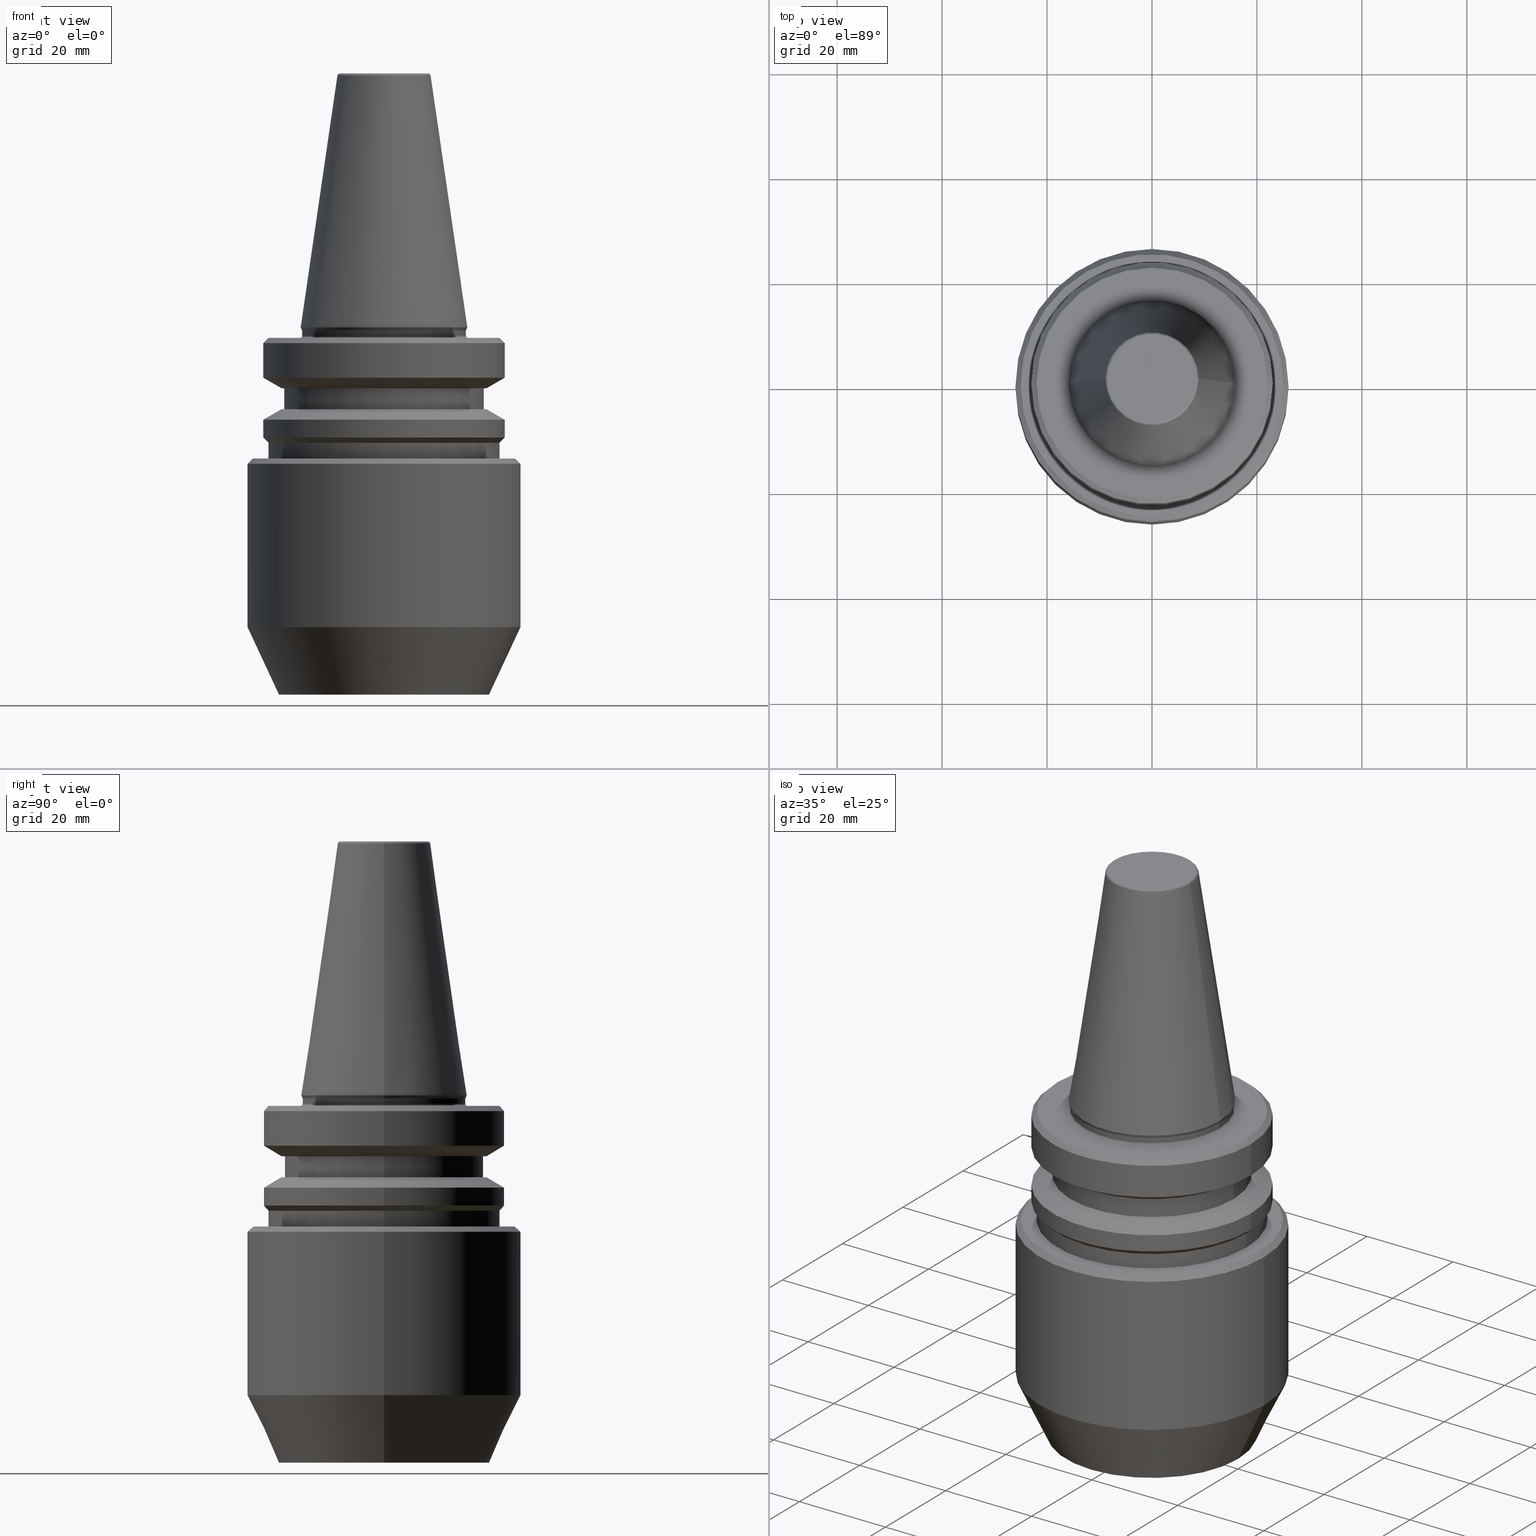
[diagram: canonical four-view strip — front | top / right | iso, engineering-drawing reading convention]
A machine part, canonical four-view strip (front | top / right | iso — engineering-drawing reading convention). The complete STEP part file that produces these views, byte-faithful:
ISO-10303-21;
HEADER;
FILE_DESCRIPTION (( 'STEP AP203' ),
    '1' );
FILE_NAME ('BT30 WE20 070 AD-6.3G15000 SL.STEP',
    '2019-05-22T05:08:59',
    ( '' ),
    ( '' ),
    'SwSTEP 2.0',
    'SolidWorks 2014',
    '' );
FILE_SCHEMA (( 'CONFIG_CONTROL_DESIGN' ));
ENDSEC;

DATA;
#1 = ORIENTED_EDGE ( 'NONE', *, *, #109, .F. ) ;
#2 = ORIENTED_EDGE ( 'NONE', *, *, #43, .T. ) ;
#3 = EDGE_LOOP ( 'NONE', ( #600, #959, #840, #39 ) ) ;
#4 = CARTESIAN_POINT ( 'NONE',  ( 0.0000000000000000000, 0.0000000000000000000, -1.599999999999823800 ) ) ;
#5 = DIRECTION ( 'NONE',  ( -0.0000000000000000000, -0.0000000000000000000, 1.000000000000000000 ) ) ;
#6 = CARTESIAN_POINT ( 'NONE',  ( 19.53610161513918800, 0.0000000000000000000, -11.59999999999938900 ) ) ;
#7 = AXIS2_PLACEMENT_3D ( 'NONE', #726, #348, #502 ) ;
#8 = ADVANCED_FACE ( 'NONE', ( #835 ), #177, .T. ) ;
#9 = DIRECTION ( 'NONE',  ( -0.0000000000000000000, -0.0000000000000000000, 1.000000000000000000 ) ) ;
#10 = AXIS2_PLACEMENT_3D ( 'NONE', #489, #714, #332 ) ;
#11 = CARTESIAN_POINT ( 'NONE',  ( -21.99999999999990800, 0.0000000000000000000, -2.000000000000001800 ) ) ;
#12 = CARTESIAN_POINT ( 'NONE',  ( 0.0000000000000000000, 0.0000000000000000000, -17.59988266494561100 ) ) ;
#13 = CARTESIAN_POINT ( 'NONE',  ( 0.0000000000000000000, 0.0000000000000000000, -11.59999999999938900 ) ) ;
#14 = VECTOR ( 'NONE', #206, 1000.000000000000000 ) ;
#15 = CARTESIAN_POINT ( 'NONE',  ( 25.99999999999791500, 0.0000000000000000000, -25.99999999999991100 ) ) ;
#16 = AXIS2_PLACEMENT_3D ( 'NONE', #288, #609, #852 ) ;
#17 = ORIENTED_EDGE ( 'NONE', *, *, #467, .T. ) ;
#18 = LINE ( 'NONE', #500, #252 ) ;
#19 = CARTESIAN_POINT ( 'NONE',  ( 0.0000000000000000000, 19.99999999999835200, -69.99999999999984400 ) ) ;
#20 = ADVANCED_FACE ( 'NONE', ( #1029 ), #202, .T. ) ;
#21 = AXIS2_PLACEMENT_3D ( 'NONE', #179, #653, #811 ) ;
#22 = ORIENTED_EDGE ( 'NONE', *, *, #83, .F. ) ;
#23 = FACE_OUTER_BOUND ( 'NONE', #623, .T. ) ;
#24 = EDGE_CURVE ( 'NONE', #534, #196, #812, .T. ) ;
#25 = EDGE_LOOP ( 'NONE', ( #379, #686, #594, #651 ) ) ;
#26 = ORIENTED_EDGE ( 'NONE', *, *, #413, .F. ) ;
#27 = ORIENTED_EDGE ( 'NONE', *, *, #753, .F. ) ;
#28 = EDGE_LOOP ( 'NONE', ( #456, #777, #400, #862 ) ) ;
#29 = AXIS2_PLACEMENT_3D ( 'NONE', #210, #972, #55 ) ;
#30 = EDGE_CURVE ( 'NONE', #403, #578, #596, .T. ) ;
#31 = CARTESIAN_POINT ( 'NONE',  ( 19.99999999999835200, 0.0000000000000000000, -69.99999999999985800 ) ) ;
#32 = CARTESIAN_POINT ( 'NONE',  ( -19.00000000000023800, 2.326828918380000200E-015, 95.66143460902885900 ) ) ;
#33 = DIRECTION ( 'NONE',  ( 1.000000000000000000, 0.0000000000000000000, 0.0000000000000000000 ) ) ;
#34 = AXIS2_PLACEMENT_3D ( 'NONE', #741, #466, #245 ) ;
#35 = DIRECTION ( 'NONE',  ( -0.0000000000000000000, -0.0000000000000000000, 1.000000000000000000 ) ) ;
#36 = VECTOR ( 'NONE', #875, 1000.000000000000000 ) ;
#37 = ORIENTED_EDGE ( 'NONE', *, *, #82, .T. ) ;
#38 = CIRCLE ( 'NONE', #143, 19.53610161513769200 ) ;
#39 = ORIENTED_EDGE ( 'NONE', *, *, #49, .F. ) ;
#40 = CARTESIAN_POINT ( 'NONE',  ( 0.0000000000000000000, 0.0000000000000000000, -25.00000000000002100 ) ) ;
#41 = CARTESIAN_POINT ( 'NONE',  ( 0.0000000000000000000, 19.53610161513918800, -11.59999999999938900 ) ) ;
#42 = VERTEX_POINT ( 'NONE', #846 ) ;
#43 = EDGE_CURVE ( 'NONE', #589, #42, #788, .T. ) ;
#44 = CARTESIAN_POINT ( 'NONE',  ( 0.0000000000000000000, 0.0000000000000000000, -69.99999999999985800 ) ) ;
#45 = AXIS2_PLACEMENT_3D ( 'NONE', #618, #445, #995 ) ;
#46 = CARTESIAN_POINT ( 'NONE',  ( -21.99999999999990800, 2.694222958124165800E-015, -25.00000000000002100 ) ) ;
#47 = FACE_OUTER_BOUND ( 'NONE', #655, .T. ) ;
#48 = EDGE_LOOP ( 'NONE', ( #453, #295, #860, #72 ) ) ;
#49 = EDGE_CURVE ( 'NONE', #886, #1031, #430, .T. ) ;
#50 = CIRCLE ( 'NONE', #867, 25.99999999999791500 ) ;
#51 = AXIS2_PLACEMENT_3D ( 'NONE', #558, #99, #155 ) ;
#52 = DIRECTION ( 'NONE',  ( -0.0000000000000000000, -0.0000000000000000000, 1.000000000000000000 ) ) ;
#53 = DIRECTION ( 'NONE',  ( 1.000000000000000000, 0.0000000000000000000, 0.0000000000000000000 ) ) ;
#54 = DIRECTION ( 'NONE',  ( -0.8660254037844393700, 1.060575238724907800E-016, 0.4999999999999985000 ) ) ;
#55 = DIRECTION ( 'NONE',  ( 1.000000000000000000, 0.0000000000000000000, 0.0000000000000000000 ) ) ;
#56 = DIRECTION ( 'NONE',  ( -0.0000000000000000000, -0.0000000000000000000, 1.000000000000000000 ) ) ;
#57 = DIRECTION ( 'NONE',  ( -0.0000000000000000000, -0.0000000000000000000, 1.000000000000000000 ) ) ;
#58 = APPROVAL ( #317, 'UNSPECIFIED' ) ;
#59 = DATE_AND_TIME ( #286, #506 ) ;
#60 = CIRCLE ( 'NONE', #111, 15.87499999999930700 ) ;
#61 = AXIS2_PLACEMENT_3D ( 'NONE', #1021, #547, #693 ) ;
#62 = DIRECTION ( 'NONE',  ( -0.0000000000000000000, -0.0000000000000000000, 1.000000000000000000 ) ) ;
#63 = FACE_OUTER_BOUND ( 'NONE', #936, .T. ) ;
#64 = ORIENTED_EDGE ( 'NONE', *, *, #804, .F. ) ;
#65 = ORIENTED_EDGE ( 'NONE', *, *, #394, .F. ) ;
#66 = DIRECTION ( 'NONE',  ( -1.000000000000000000, 0.0000000000000000000, -0.0000000000000000000 ) ) ;
#67 = CARTESIAN_POINT ( 'NONE',  ( 0.0000000000000000000, 0.0000000000000000000, -21.00000000000001800 ) ) ;
#68 = AXIS2_PLACEMENT_3D ( 'NONE', #228, #392, #437 ) ;
#69 = PLANE ( 'NONE',  #187 ) ;
#70 = LINE ( 'NONE', #497, #519 ) ;
#71 = VERTEX_POINT ( 'NONE', #783 ) ;
#72 = ORIENTED_EDGE ( 'NONE', *, *, #753, .T. ) ;
#73 = CONICAL_SURFACE ( 'NONE', #16, 15.60000000000016800, 0.4363323129978970400 ) ;
#74 = PLANE ( 'NONE',  #335 ) ;
#75 = DIRECTION ( 'NONE',  ( -0.0000000000000000000, -0.0000000000000000000, 1.000000000000000000 ) ) ;
#76 = AXIS2_PLACEMENT_3D ( 'NONE', #84, #816, #435 ) ;
#77 = DIRECTION ( 'NONE',  ( 0.0000000000000000000, 0.0000000000000000000, -1.000000000000000000 ) ) ;
#78 = EDGE_LOOP ( 'NONE', ( #745, #659, #2, #759 ) ) ;
#79 = EDGE_CURVE ( 'NONE', #534, #395, #1002, .T. ) ;
#80 = CARTESIAN_POINT ( 'NONE',  ( 25.99999999999791500, 0.0000000000000000000, 95.66143460902885900 ) ) ;
#81 = DIRECTION ( 'NONE',  ( -1.000000000000000000, 0.0000000000000000000, 0.0000000000000000000 ) ) ;
#82 = EDGE_CURVE ( 'NONE', #171, #886, #577, .T. ) ;
#83 = EDGE_CURVE ( 'NONE', #395, #534, #149, .T. ) ;
#84 = CARTESIAN_POINT ( 'NONE',  ( 0.0000000000000000000, 0.0000000000000000000, 0.0000000000000000000 ) ) ;
#85 = ADVANCED_FACE ( 'NONE', ( #377 ), #530, .T. ) ;
#86 = APPROVAL_DATE_TIME ( #322, #787 ) ;
#87 = CIRCLE ( 'NONE', #119, 8.384228427309182100 ) ;
#88 = DIRECTION ( 'NONE',  ( 1.000000000000000000, 0.0000000000000000000, 0.0000000000000000000 ) ) ;
#89 = DIRECTION ( 'NONE',  ( -0.0000000000000000000, -0.0000000000000000000, 1.000000000000000000 ) ) ;
#90 = CONICAL_SURFACE ( 'NONE', #21, 21.99999999999990800, 0.7853981633974482800 ) ;
#91 = ADVANCED_FACE ( 'NONE', ( #555 ), #90, .T. ) ;
#92 = CIRCLE ( 'NONE', #51, 22.99999999999979700 ) ;
#93 = ORIENTED_EDGE ( 'NONE', *, *, #406, .T. ) ;
#94 = AXIS2_PLACEMENT_3D ( 'NONE', #825, #552, #298 ) ;
#95 = ORIENTED_EDGE ( 'NONE', *, *, #804, .T. ) ;
#96 = DIRECTION ( 'NONE',  ( 1.000000000000000000, 0.0000000000000000000, 0.0000000000000000000 ) ) ;
#97 = DIRECTION ( 'NONE',  ( -0.0000000000000000000, -0.0000000000000000000, 1.000000000000000000 ) ) ;
#98 = DIRECTION ( 'NONE',  ( -0.0000000000000000000, -0.0000000000000000000, 1.000000000000000000 ) ) ;
#99 = DIRECTION ( 'NONE',  ( -0.0000000000000000000, -0.0000000000000000000, 1.000000000000000000 ) ) ;
#100 = EDGE_CURVE ( 'NONE', #557, #175, #354, .T. ) ;
#101 = FACE_BOUND ( 'NONE', #718, .T. ) ;
#102 = COORDINATED_UNIVERSAL_TIME_OFFSET ( 5, 30, .AHEAD. ) ;
#103 =( LENGTH_UNIT ( ) NAMED_UNIT ( * ) SI_UNIT ( .MILLI., .METRE. ) );
#104 = EDGE_CURVE ( 'NONE', #395, #326, #948, .T. ) ;
#105 = CARTESIAN_POINT ( 'NONE',  ( 0.0000000000000000000, 0.0000000000000000000, 47.97215411344135600 ) ) ;
#106 = ORIENTED_EDGE ( 'NONE', *, *, #888, .T. ) ;
#107 = ORIENTED_EDGE ( 'NONE', *, *, #901, .F. ) ;
#108 = CIRCLE ( 'NONE', #61, 22.99999999999979700 ) ;
#109 = EDGE_CURVE ( 'NONE', #472, #876, #324, .T. ) ;
#110 = VERTEX_POINT ( 'NONE', #780 ) ;
#111 = AXIS2_PLACEMENT_3D ( 'NONE', #715, #461, #243 ) ;
#112 = APPROVAL_PERSON_ORGANIZATION ( #349, #787, #628 ) ;
#113 = FACE_OUTER_BOUND ( 'NONE', #336, .T. ) ;
#114 = PERSON_AND_ORGANIZATION_ROLE ( 'classification_officer' ) ;
#115 = FACE_BOUND ( 'NONE', #548, .T. ) ;
#116 = EDGE_LOOP ( 'NONE', ( #565, #273, #142, #815 ) ) ;
#117 = EDGE_LOOP ( 'NONE', ( #950, #620, #151, #408 ) ) ;
#118 = APPLICATION_CONTEXT ( 'configuration controlled 3d designs of mechanical parts and assemblies' ) ;
#119 = AXIS2_PLACEMENT_3D ( 'NONE', #641, #165, #251 ) ;
#120 = CARTESIAN_POINT ( 'NONE',  ( -15.60000000000022500, 1.910449006669898500E-015, 95.66143460902885900 ) ) ;
#121 = DIRECTION ( 'NONE',  ( 1.000000000000000000, 0.0000000000000000000, 0.0000000000000000000 ) ) ;
#122 = AXIS2_PLACEMENT_3D ( 'NONE', #261, #685, #542 ) ;
#123 = CARTESIAN_POINT ( 'NONE',  ( 22.99999999999979700, 0.0000000000000000000, -21.00000000000001800 ) ) ;
#124 = AXIS2_PLACEMENT_3D ( 'NONE', #316, #625, #405 ) ;
#125 = CARTESIAN_POINT ( 'NONE',  ( -15.60000000000016800, 1.910449006669895000E-015, -0.5897394031393332600 ) ) ;
#126 = DIRECTION ( 'NONE',  ( 1.000000000000000000, 0.0000000000000000000, 0.0000000000000000000 ) ) ;
#127 = VECTOR ( 'NONE', #851, 1000.000000000000100 ) ;
#128 = LOCAL_TIME ( 10, 38, 59.00000000000000000, #362 ) ;
#129 = DIRECTION ( 'NONE',  ( -0.7071067811865474600, 0.0000000000000000000, -0.7071067811865475700 ) ) ;
#130 = EDGE_CURVE ( 'NONE', #342, #796, #757, .T. ) ;
#131 = DIRECTION ( 'NONE',  ( -0.7071067811865474600, 8.659560562354931600E-017, 0.7071067811865475700 ) ) ;
#132 = VERTEX_POINT ( 'NONE', #843 ) ;
#133 = FACE_OUTER_BOUND ( 'NONE', #444, .T. ) ;
#134 = DIRECTION ( 'NONE',  ( -1.000000000000000000, 1.224646799147352200E-016, 0.0000000000000000000 ) ) ;
#135 = ORIENTED_EDGE ( 'NONE', *, *, #602, .T. ) ;
#136 = ORIENTED_EDGE ( 'NONE', *, *, #593, .F. ) ;
#137 = AXIS2_PLACEMENT_3D ( 'NONE', #393, #772, #842 ) ;
#138 = ORIENTED_EDGE ( 'NONE', *, *, #922, .T. ) ;
#139 = AXIS2_PLACEMENT_3D ( 'NONE', #991, #476, #1019 ) ;
#140 = ADVANCED_FACE ( 'NONE', ( #510, #115 ), #74, .F. ) ;
#141 = CARTESIAN_POINT ( 'NONE',  ( -19.99999999999835200, 2.449293598294504600E-015, -69.99999999999985800 ) ) ;
#142 = ORIENTED_EDGE ( 'NONE', *, *, #590, .F. ) ;
#143 = AXIS2_PLACEMENT_3D ( 'NONE', #1045, #287, #248 ) ;
#144 = CARTESIAN_POINT ( 'NONE',  ( 15.60000000000016800, 0.0000000000000000000, -0.5897394031393332600 ) ) ;
#145 = CIRCLE ( 'NONE', #559, 25.99999999999791500 ) ;
#146 = DIRECTION ( 'NONE',  ( -0.0000000000000000000, -0.0000000000000000000, 1.000000000000000000 ) ) ;
#147 = EDGE_CURVE ( 'NONE', #326, #196, #325, .T. ) ;
#148 = DIRECTION ( 'NONE',  ( -0.0000000000000000000, -0.0000000000000000000, 1.000000000000000000 ) ) ;
#149 = CIRCLE ( 'NONE', #195, 15.60000000000028000 ) ;
#150 = DIRECTION ( 'NONE',  ( 1.000000000000000000, 0.0000000000000000000, 0.0000000000000000000 ) ) ;
#151 = ORIENTED_EDGE ( 'NONE', *, *, #375, .T. ) ;
#152 = PERSON ( 'UNSPECIFIED', 'UNSPECIFIED', 'UNSPECIFIED', ('UNSPECIFIED'), ('UNSPECIFIED'), ('UNSPECIFIED') ) ;
#153 = CARTESIAN_POINT ( 'NONE',  ( 0.0000000000000000000, 0.0000000000000000000, 95.66143460902885900 ) ) ;
#154 = DIRECTION ( 'NONE',  ( -0.7071067811865474600, 0.0000000000000000000, -0.7071067811865475700 ) ) ;
#155 = DIRECTION ( 'NONE',  ( 1.000000000000000000, 0.0000000000000000000, 0.0000000000000000000 ) ) ;
#156 = LINE ( 'NONE', #31, #127 ) ;
#157 = APPROVAL_DATE_TIME ( #385, #58 ) ;
#158 = EDGE_LOOP ( 'NONE', ( #470, #968, #432, #64 ) ) ;
#159 = VECTOR ( 'NONE', #131, 1000.000000000000000 ) ;
#160 = AXIS2_PLACEMENT_3D ( 'NONE', #1006, #613, #397 ) ;
#161 = CARTESIAN_POINT ( 'NONE',  ( 0.0000000000000000000, 0.0000000000000000000, -17.59988266494561100 ) ) ;
#162 = AXIS2_PLACEMENT_3D ( 'NONE', #931, #849, #462 ) ;
#163 = CARTESIAN_POINT ( 'NONE',  ( 0.0000000000000000000, 21.99999999999990800, -25.00000000000002100 ) ) ;
#164 = CIRCLE ( 'NONE', #320, 16.00000000000034800 ) ;
#165 = DIRECTION ( 'NONE',  ( -0.0000000000000000000, -0.0000000000000000000, 1.000000000000000000 ) ) ;
#166 = VERTEX_POINT ( 'NONE', #1025 ) ;
#167 = DIRECTION ( 'NONE',  ( -1.000000000000000000, 0.0000000000000000000, 0.0000000000000000000 ) ) ;
#168 = EDGE_CURVE ( 'NONE', #230, #472, #92, .T. ) ;
#169 = EDGE_CURVE ( 'NONE', #173, #904, #531, .T. ) ;
#170 = CARTESIAN_POINT ( 'NONE',  ( -19.00000000000023800, 2.326828918380000200E-015, -11.59999999999938900 ) ) ;
#171 = VERTEX_POINT ( 'NONE', #603 ) ;
#172 = CARTESIAN_POINT ( 'NONE',  ( 0.0000000000000000000, 0.0000000000000000000, 95.66143460902885900 ) ) ;
#173 = VERTEX_POINT ( 'NONE', #11 ) ;
#174 = CARTESIAN_POINT ( 'NONE',  ( 0.0000000000000000000, 0.0000000000000000000, -0.5897394031393332600 ) ) ;
#175 = VERTEX_POINT ( 'NONE', #708 ) ;
#176 = FACE_OUTER_BOUND ( 'NONE', #423, .T. ) ;
#177 = CONICAL_SURFACE ( 'NONE', #792, 19.53610161513918800, 1.047197551196599400 ) ;
#178 = EDGE_CURVE ( 'NONE', #746, #42, #903, .T. ) ;
#179 = CARTESIAN_POINT ( 'NONE',  ( 0.0000000000000000000, 0.0000000000000000000, -21.99999999999990800 ) ) ;
#180 = CARTESIAN_POINT ( 'NONE',  ( 19.00000000000023800, 0.0000000000000000000, -15.59999999999994800 ) ) ;
#181 = ORIENTED_EDGE ( 'NONE', *, *, #675, .T. ) ;
#182 = EDGE_LOOP ( 'NONE', ( #487, #371, #259, #292 ) ) ;
#183 = AXIS2_PLACEMENT_3D ( 'NONE', #1034, #35, #647 ) ;
#184 = DIRECTION ( 'NONE',  ( 1.000000000000000000, 0.0000000000000000000, 0.0000000000000000000 ) ) ;
#185 = AXIS2_PLACEMENT_3D ( 'NONE', #725, #887, #574 ) ;
#186 = DIRECTION ( 'NONE',  ( -0.0000000000000000000, -0.0000000000000000000, 1.000000000000000000 ) ) ;
#187 = AXIS2_PLACEMENT_3D ( 'NONE', #163, #704, #66 ) ;
#188 = CARTESIAN_POINT ( 'NONE',  ( 0.0000000000000000000, 0.0000000000000000000, -1.599999999999823800 ) ) ;
#189 = FACE_BOUND ( 'NONE', #439, .T. ) ;
#190 = CARTESIAN_POINT ( 'NONE',  ( 0.0000000000000000000, 0.0000000000000000000, -57.13295847694312400 ) ) ;
#191 = LINE ( 'NONE', #144, #391 ) ;
#192 = AXIS2_PLACEMENT_3D ( 'NONE', #40, #212, #126 ) ;
#193 = CARTESIAN_POINT ( 'NONE',  ( 0.0000000000000000000, 0.0000000000000000000, 0.0000000000000000000 ) ) ;
#194 = ORIENTED_EDGE ( 'NONE', *, *, #315, .F. ) ;
#195 = AXIS2_PLACEMENT_3D ( 'NONE', #4, #868, #1014 ) ;
#196 = VERTEX_POINT ( 'NONE', #269 ) ;
#197 = AXIS2_PLACEMENT_3D ( 'NONE', #751, #909, #671 ) ;
#198 = ORIENTED_EDGE ( 'NONE', *, *, #855, .T. ) ;
#199 = CYLINDRICAL_SURFACE ( 'NONE', #183, 19.00000000000023800 ) ;
#200 = APPROVAL ( #396, 'UNSPECIFIED' ) ;
#201 = CIRCLE ( 'NONE', #450, 8.878994820583352900 ) ;
#202 = CYLINDRICAL_SURFACE ( 'NONE', #422, 25.99999999999791500 ) ;
#203 = EDGE_LOOP ( 'NONE', ( #710, #584 ) ) ;
#204 = AXIS2_PLACEMENT_3D ( 'NONE', #357, #328, #184 ) ;
#205 = ORIENTED_EDGE ( 'NONE', *, *, #83, .T. ) ;
#206 = DIRECTION ( 'NONE',  ( -0.0000000000000000000, -0.0000000000000000000, 1.000000000000000000 ) ) ;
#207 = AXIS2_PLACEMENT_3D ( 'NONE', #544, #612, #219 ) ;
#208 = EDGE_LOOP ( 'NONE', ( #865, #709, #996, #484 ) ) ;
#209 = CYLINDRICAL_SURFACE ( 'NONE', #414, 21.99999999999990800 ) ;
#210 = CARTESIAN_POINT ( 'NONE',  ( 0.0000000000000000000, 0.0000000000000000000, -69.99999999999985800 ) ) ;
#211 = DIRECTION ( 'NONE',  ( -1.000000000000000000, 0.0000000000000000000, 0.0000000000000000000 ) ) ;
#212 = DIRECTION ( 'NONE',  ( -0.0000000000000000000, -0.0000000000000000000, 1.000000000000000000 ) ) ;
#213 = VECTOR ( 'NONE', #711, 1000.000000000000000 ) ;
#214 = AXIS2_PLACEMENT_3D ( 'NONE', #941, #610, #134 ) ;
#215 = DIRECTION ( 'NONE',  ( 1.000000000000000000, 0.0000000000000000000, 0.0000000000000000000 ) ) ;
#216 = ORIENTED_EDGE ( 'NONE', *, *, #549, .T. ) ;
#217 = AXIS2_PLACEMENT_3D ( 'NONE', #644, #569, #167 ) ;
#218 = PRODUCT_RELATED_PRODUCT_CATEGORY ( 'detail', '', ( #318 ) ) ;
#219 = DIRECTION ( 'NONE',  ( 1.000000000000000000, 0.0000000000000000000, 0.0000000000000000000 ) ) ;
#220 = VECTOR ( 'NONE', #958, 1000.000000000000000 ) ;
#221 = EDGE_CURVE ( 'NONE', #42, #589, #512, .T. ) ;
#222 = DIRECTION ( 'NONE',  ( 1.000000000000000000, 0.0000000000000000000, 0.0000000000000000000 ) ) ;
#223 = DATE_TIME_ROLE ( 'classification_date' ) ;
#224 = AXIS2_PLACEMENT_3D ( 'NONE', #732, #761, #458 ) ;
#225 = EDGE_LOOP ( 'NONE', ( #989, #337, #135, #664 ) ) ;
#226 = FACE_OUTER_BOUND ( 'NONE', #229, .T. ) ;
#227 = EDGE_LOOP ( 'NONE', ( #1046, #367, #615, #850 ) ) ;
#228 = CARTESIAN_POINT ( 'NONE',  ( 0.0000000000000000000, 0.0000000000000000000, 95.66143460902885900 ) ) ;
#229 = EDGE_LOOP ( 'NONE', ( #719, #883, #963, #26 ) ) ;
#230 = VERTEX_POINT ( 'NONE', #984 ) ;
#231 = DIRECTION ( 'NONE',  ( -0.0000000000000000000, -0.0000000000000000000, 1.000000000000000000 ) ) ;
#232 = AXIS2_PLACEMENT_3D ( 'NONE', #1024, #869, #1036 ) ;
#233 = DATE_TIME_ROLE ( 'creation_date' ) ;
#234 = CARTESIAN_POINT ( 'NONE',  ( 22.99999999999979700, 0.0000000000000000000, -17.59988266494561100 ) ) ;
#235 = ADVANCED_FACE ( 'NONE', ( #707 ), #270, .T. ) ;
#236 = CARTESIAN_POINT ( 'NONE',  ( 15.60000000000028000, 0.0000000000000000000, -1.599999999999823800 ) ) ;
#237 = EDGE_CURVE ( 'NONE', #578, #403, #923, .T. ) ;
#238 =( NAMED_UNIT ( * ) PLANE_ANGLE_UNIT ( ) SI_UNIT ( $, .RADIAN. ) );
#239 = ORIENTED_EDGE ( 'NONE', *, *, #267, .T. ) ;
#240 = AXIS2_PLACEMENT_3D ( 'NONE', #805, #488, #885 ) ;
#241 = DIRECTION ( 'NONE',  ( -0.0000000000000000000, -0.0000000000000000000, 1.000000000000000000 ) ) ;
#242 = FACE_OUTER_BOUND ( 'NONE', #3, .T. ) ;
#243 = DIRECTION ( 'NONE',  ( 1.000000000000000000, 0.0000000000000000000, 0.0000000000000000000 ) ) ;
#244 = EDGE_LOOP ( 'NONE', ( #1027, #960, #297, #327 ) ) ;
#245 = DIRECTION ( 'NONE',  ( 1.000000000000000000, 0.0000000000000000000, 0.0000000000000000000 ) ) ;
#246 = AXIS2_PLACEMENT_3D ( 'NONE', #493, #424, #343 ) ;
#247 = VERTEX_POINT ( 'NONE', #981 ) ;
#248 = DIRECTION ( 'NONE',  ( 1.000000000000000000, 0.0000000000000000000, 0.0000000000000000000 ) ) ;
#249 = DIRECTION ( 'NONE',  ( -0.0000000000000000000, -0.0000000000000000000, 1.000000000000000000 ) ) ;
#250 = MANIFOLD_SOLID_BREP ( 'Revolve1', #474 ) ;
#251 = DIRECTION ( 'NONE',  ( 1.000000000000000000, 0.0000000000000000000, 0.0000000000000000000 ) ) ;
#252 = VECTOR ( 'NONE', #630, 1000.000000000000000 ) ;
#253 = ADVANCED_FACE ( 'NONE', ( #63 ), #663, .T. ) ;
#254 = ORIENTED_EDGE ( 'NONE', *, *, #526, .F. ) ;
#255 = CIRCLE ( 'NONE', #580, 19.00000000000023800 ) ;
#256 = EDGE_CURVE ( 'NONE', #806, #1031, #872, .T. ) ;
#257 = CARTESIAN_POINT ( 'NONE',  ( -16.00000000000045800, 1.959434878635821100E-015, -2.000000000000057300 ) ) ;
#258 = EDGE_CURVE ( 'NONE', #171, #806, #38, .T. ) ;
#259 = ORIENTED_EDGE ( 'NONE', *, *, #602, .F. ) ;
#260 = ORIENTED_EDGE ( 'NONE', *, *, #315, .T. ) ;
#261 = CARTESIAN_POINT ( 'NONE',  ( 0.0000000000000000000, 8.384228427309182100, 48.39999999999982100 ) ) ;
#262 = ADVANCED_FACE ( 'NONE', ( #242 ), #638, .T. ) ;
#263 = EDGE_CURVE ( 'NONE', #800, #1031, #459, .T. ) ;
#264 = CARTESIAN_POINT ( 'NONE',  ( 21.99999999999990800, 0.0000000000000000000, -21.99999999999990800 ) ) ;
#265 = ADVANCED_FACE ( 'NONE', ( #485, #847 ), #758, .F. ) ;
#266 = LINE ( 'NONE', #417, #36 ) ;
#267 = EDGE_CURVE ( 'NONE', #387, #876, #1039, .T. ) ;
#268 = AXIS2_PLACEMENT_3D ( 'NONE', #372, #279, #211 ) ;
#269 = CARTESIAN_POINT ( 'NONE',  ( 15.60000000000016800, 0.0000000000000000000, -0.5897394031393332600 ) ) ;
#270 = CYLINDRICAL_SURFACE ( 'NONE', #882, 19.00000000000023800 ) ;
#271 = ORIENTED_EDGE ( 'NONE', *, *, #774, .F. ) ;
#272 = VERTEX_POINT ( 'NONE', #454 ) ;
#273 = ORIENTED_EDGE ( 'NONE', *, *, #329, .T. ) ;
#274 = CARTESIAN_POINT ( 'NONE',  ( 0.0000000000000000000, 0.0000000000000000000, -25.00000000000002100 ) ) ;
#275 = EDGE_CURVE ( 'NONE', #272, #428, #608, .T. ) ;
#276 = VECTOR ( 'NONE', #807, 1000.000000000000000 ) ;
#277 = ORIENTED_EDGE ( 'NONE', *, *, #130, .F. ) ;
#278 = LINE ( 'NONE', #943, #914 ) ;
#279 = DIRECTION ( 'NONE',  ( 0.0000000000000000000, 0.0000000000000000000, -1.000000000000000000 ) ) ;
#280 = AXIS2_PLACEMENT_3D ( 'NONE', #44, #1049, #339 ) ;
#281 = AXIS2_PLACEMENT_3D ( 'NONE', #67, #930, #639 ) ;
#282 = EDGE_LOOP ( 'NONE', ( #307, #690, #935, #539 ) ) ;
#283 = AXIS2_PLACEMENT_3D ( 'NONE', #881, #77, #926 ) ;
#284 = ADVANCED_FACE ( 'NONE', ( #441 ), #799, .T. ) ;
#285 = CARTESIAN_POINT ( 'NONE',  ( 0.0000000000000000000, 0.0000000000000000000, -21.99999999999990800 ) ) ;
#286 = CALENDAR_DATE ( 2019, 22, 5 ) ;
#287 = DIRECTION ( 'NONE',  ( -0.0000000000000000000, -0.0000000000000000000, 1.000000000000000000 ) ) ;
#288 = CARTESIAN_POINT ( 'NONE',  ( 0.0000000000000000000, 0.0000000000000000000, -0.5897394031393332600 ) ) ;
#289 = CIRCLE ( 'NONE', #281, 22.99999999999979700 ) ;
#290 = AXIS2_PLACEMENT_3D ( 'NONE', #550, #729, #434 ) ;
#291 = VECTOR ( 'NONE', #900, 1000.000000000000000 ) ;
#292 = ORIENTED_EDGE ( 'NONE', *, *, #299, .F. ) ;
#293 = DIRECTION ( 'NONE',  ( 1.000000000000000000, 0.0000000000000000000, 0.0000000000000000000 ) ) ;
#294 = CARTESIAN_POINT ( 'NONE',  ( 0.0000000000000000000, 0.0000000000000000000, -0.5897394031393332600 ) ) ;
#295 = ORIENTED_EDGE ( 'NONE', *, *, #300, .F. ) ;
#296 = EDGE_CURVE ( 'NONE', #599, #589, #824, .T. ) ;
#297 = ORIENTED_EDGE ( 'NONE', *, *, #908, .T. ) ;
#298 = DIRECTION ( 'NONE',  ( 1.000000000000000000, 0.0000000000000000000, 0.0000000000000000000 ) ) ;
#299 = EDGE_CURVE ( 'NONE', #196, #831, #191, .T. ) ;
#300 = EDGE_CURVE ( 'NONE', #166, #912, #587, .T. ) ;
#301 = ADVANCED_FACE ( 'NONE', ( #1017 ), #1009, .T. ) ;
#302 = CARTESIAN_POINT ( 'NONE',  ( 22.99999999999979700, 0.0000000000000000000, 95.66143460902885900 ) ) ;
#303 = FACE_OUTER_BOUND ( 'NONE', #28, .T. ) ;
#304 = DIRECTION ( 'NONE',  ( -0.0000000000000000000, -0.0000000000000000000, 1.000000000000000000 ) ) ;
#305 = APPROVAL_DATE_TIME ( #520, #200 ) ;
#306 = AXIS2_PLACEMENT_3D ( 'NONE', #560, #636, #798 ) ;
#307 = ORIENTED_EDGE ( 'NONE', *, *, #889, .F. ) ;
#308 = EDGE_LOOP ( 'NONE', ( #993, #573 ) ) ;
#309 = CIRCLE ( 'NONE', #207, 8.384228427309182100 ) ;
#310 = CC_DESIGN_DATE_AND_TIME_ASSIGNMENT ( #744, #223, ( #436 ) ) ;
#311 = PERSON_AND_ORGANIZATION_ROLE ( 'design_supplier' ) ;
#312 = CARTESIAN_POINT ( 'NONE',  ( 8.878994820583352900, 1.515745026156835700E-015, 47.97215411344135600 ) ) ;
#313 = ADVANCED_FACE ( 'NONE', ( #773 ), #384, .T. ) ;
#314 = CARTESIAN_POINT ( 'NONE',  ( 0.0000000000000000000, 0.0000000000000000000, -2.999999999999891600 ) ) ;
#315 = EDGE_CURVE ( 'NONE', #796, #342, #164, .T. ) ;
#316 = CARTESIAN_POINT ( 'NONE',  ( 0.0000000000000000000, 0.0000000000000000000, 95.66143460902885900 ) ) ;
#317 = APPROVAL_STATUS ( 'not_yet_approved' ) ;
#318 = PRODUCT ( 'BT30 WE20 070 AD-6.3G15000 SL', 'BT30 WE20 070 AD-6.3G15000 SL', '', ( #505 ) ) ;
#319 = DIRECTION ( 'NONE',  ( 1.000000000000000000, 0.0000000000000000000, 0.0000000000000000000 ) ) ;
#320 = AXIS2_PLACEMENT_3D ( 'NONE', #389, #858, #770 ) ;
#321 = DIRECTION ( 'NONE',  ( 1.000000000000000000, 0.0000000000000000000, 0.0000000000000000000 ) ) ;
#322 = DATE_AND_TIME ( #527, #728 ) ;
#323 = FACE_OUTER_BOUND ( 'NONE', #203, .T. ) ;
#324 = LINE ( 'NONE', #782, #921 ) ;
#325 = CIRCLE ( 'NONE', #232, 15.60000000000016800 ) ;
#326 = VERTEX_POINT ( 'NONE', #125 ) ;
#327 = ORIENTED_EDGE ( 'NONE', *, *, #82, .F. ) ;
#328 = DIRECTION ( 'NONE',  ( -0.0000000000000000000, -0.0000000000000000000, 1.000000000000000000 ) ) ;
#329 = EDGE_CURVE ( 'NONE', #403, #110, #581, .T. ) ;
#330 = DIRECTION ( 'NONE',  ( -0.0000000000000000000, -0.0000000000000000000, 1.000000000000000000 ) ) ;
#331 = DIRECTION ( 'NONE',  ( -0.8660254037844370400, 0.0000000000000000000, -0.5000000000000027800 ) ) ;
#332 = DIRECTION ( 'NONE',  ( 1.000000000000000000, 0.0000000000000000000, 0.0000000000000000000 ) ) ;
#333 = CIRCLE ( 'NONE', #306, 21.99999999999990800 ) ;
#334 = APPROVAL_PERSON_ORGANIZATION ( #537, #200, #642 ) ;
#335 = AXIS2_PLACEMENT_3D ( 'NONE', #41, #942, #952 ) ;
#336 = EDGE_LOOP ( 'NONE', ( #216, #925, #924, #350 ) ) ;
#337 = ORIENTED_EDGE ( 'NONE', *, *, #737, .T. ) ;
#338 = TOROIDAL_SURFACE ( 'NONE', #137, 16.00000000000056800, 0.4000000000002890100 ) ;
#339 = DIRECTION ( 'NONE',  ( 1.000000000000000000, 0.0000000000000000000, 0.0000000000000000000 ) ) ;
#340 = AXIS2_PLACEMENT_3D ( 'NONE', #188, #89, #820 ) ;
#341 = CC_DESIGN_APPROVAL ( #200, ( #436 ) ) ;
#342 = VERTEX_POINT ( 'NONE', #257 ) ;
#343 = DIRECTION ( 'NONE',  ( 0.0000000000000000000, 0.0000000000000000000, -1.000000000000000000 ) ) ;
#344 = ORIENTED_EDGE ( 'NONE', *, *, #299, .T. ) ;
#345 = AXIS2_PLACEMENT_3D ( 'NONE', #668, #1040, #443 ) ;
#346 = ORIENTED_EDGE ( 'NONE', *, *, #419, .T. ) ;
#347 = DIRECTION ( 'NONE',  ( 0.0000000000000000000, 0.0000000000000000000, -1.000000000000000000 ) ) ;
#348 = DIRECTION ( 'NONE',  ( -0.0000000000000000000, -0.0000000000000000000, 1.000000000000000000 ) ) ;
#349 = PERSON_AND_ORGANIZATION ( #152, #754 ) ;
#350 = ORIENTED_EDGE ( 'NONE', *, *, #263, .F. ) ;
#351 = CIRCLE ( 'NONE', #45, 0.4000000000002890100 ) ;
#352 = DIRECTION ( 'NONE',  ( -0.0000000000000000000, -0.0000000000000000000, 1.000000000000000000 ) ) ;
#353 = DIRECTION ( 'NONE',  ( 0.7071067811865474600, 0.0000000000000000000, 0.7071067811865475700 ) ) ;
#354 = CIRCLE ( 'NONE', #635, 21.99999999999990800 ) ;
#355 = EDGE_LOOP ( 'NONE', ( #917, #905 ) ) ;
#356 = ORIENTED_EDGE ( 'NONE', *, *, #130, .T. ) ;
#357 = CARTESIAN_POINT ( 'NONE',  ( 0.0000000000000000000, 0.0000000000000000000, -2.000000000000001800 ) ) ;
#358 = DIRECTION ( 'NONE',  ( -1.000000000000000000, 0.0000000000000000000, 0.0000000000000000000 ) ) ;
#359 = AXIS2_PLACEMENT_3D ( 'NONE', #973, #576, #431 ) ;
#360 = DIRECTION ( 'NONE',  ( 1.000000000000000000, 0.0000000000000000000, 0.0000000000000000000 ) ) ;
#361 = CIRCLE ( 'NONE', #10, 21.99999999999990800 ) ;
#362 = COORDINATED_UNIVERSAL_TIME_OFFSET ( 5, 30, .AHEAD. ) ;
#363 = DIRECTION ( 'NONE',  ( 1.000000000000000000, 0.0000000000000000000, 0.0000000000000000000 ) ) ;
#364 = ORIENTED_EDGE ( 'NONE', *, *, #147, .F. ) ;
#365 = LINE ( 'NONE', #381, #159 ) ;
#366 = EDGE_CURVE ( 'NONE', #175, #557, #568, .T. ) ;
#367 = ORIENTED_EDGE ( 'NONE', *, *, #901, .T. ) ;
#368 = FACE_OUTER_BOUND ( 'NONE', #837, .T. ) ;
#369 = CARTESIAN_POINT ( 'NONE',  ( 21.99999999999990800, 0.0000000000000000000, -25.00000000000002100 ) ) ;
#370 = CC_DESIGN_PERSON_AND_ORGANIZATION_ASSIGNMENT ( #988, #1015, ( #934 ) ) ;
#371 = ORIENTED_EDGE ( 'NONE', *, *, #657, .T. ) ;
#372 = CARTESIAN_POINT ( 'NONE',  ( 0.0000000000000000000, 0.0000000000000000000, -2.999999999999891600 ) ) ;
#373 = ORIENTED_EDGE ( 'NONE', *, *, #49, .T. ) ;
#374 = EDGE_CURVE ( 'NONE', #173, #876, #764, .T. ) ;
#375 = EDGE_CURVE ( 'NONE', #578, #132, #156, .T. ) ;
#376 = CIRCLE ( 'NONE', #383, 24.99999999999802500 ) ;
#377 = FACE_OUTER_BOUND ( 'NONE', #117, .T. ) ;
#378 = AXIS2_PLACEMENT_3D ( 'NONE', #314, #564, #222 ) ;
#379 = ORIENTED_EDGE ( 'NONE', *, *, #79, .T. ) ;
#380 = CARTESIAN_POINT ( 'NONE',  ( 15.60000000000022500, 0.0000000000000000000, 95.66143460902885900 ) ) ;
#381 = CARTESIAN_POINT ( 'NONE',  ( -21.99999999999990800, 2.694222958124165800E-015, -21.99999999999990800 ) ) ;
#382 = ADVANCED_FACE ( 'NONE', ( #986 ), #932, .T. ) ;
#383 = AXIS2_PLACEMENT_3D ( 'NONE', #274, #910, #363 ) ;
#384 = CONICAL_SURFACE ( 'NONE', #29, 19.99999999999835200, 0.4363323129985728400 ) ;
#385 = DATE_AND_TIME ( #582, #795 ) ;
#386 = DIRECTION ( 'NONE',  ( -1.000000000000000000, 0.0000000000000000000, 0.0000000000000000000 ) ) ;
#387 = VERTEX_POINT ( 'NONE', #440 ) ;
#388 = FACE_OUTER_BOUND ( 'NONE', #540, .T. ) ;
#389 = CARTESIAN_POINT ( 'NONE',  ( 0.0000000000000000000, 0.0000000000000000000, -2.000000000000001800 ) ) ;
#390 = APPROVAL_STATUS ( 'not_yet_approved' ) ;
#391 = VECTOR ( 'NONE', #616, 999.9999999999998900 ) ;
#392 = DIRECTION ( 'NONE',  ( -0.0000000000000000000, -0.0000000000000000000, 1.000000000000000000 ) ) ;
#393 = CARTESIAN_POINT ( 'NONE',  ( 0.0000000000000000000, 0.0000000000000000000, -1.599999999999823800 ) ) ;
#394 = EDGE_CURVE ( 'NONE', #833, #694, #361, .T. ) ;
#395 = VERTEX_POINT ( 'NONE', #871 ) ;
#396 = APPROVAL_STATUS ( 'not_yet_approved' ) ;
#397 = DIRECTION ( 'NONE',  ( 1.000000000000000000, 0.0000000000000000000, 0.0000000000000000000 ) ) ;
#398 = CARTESIAN_POINT ( 'NONE',  ( -24.99999999999802500, 0.0000000000000000000, -25.00000000000002100 ) ) ;
#399 = ADVANCED_FACE ( 'NONE', ( #955 ), #716, .T. ) ;
#400 = ORIENTED_EDGE ( 'NONE', *, *, #374, .T. ) ;
#401 = EDGE_LOOP ( 'NONE', ( #426, #205, #776, #364 ) ) ;
#402 = DIRECTION ( 'NONE',  ( 1.000000000000000000, 0.0000000000000000000, 0.0000000000000000000 ) ) ;
#403 = VERTEX_POINT ( 'NONE', #879 ) ;
#404 = CONICAL_SURFACE ( 'NONE', #76, 15.87499999999930700, 0.1448138461595524500 ) ;
#405 = DIRECTION ( 'NONE',  ( 1.000000000000000000, 0.0000000000000000000, 0.0000000000000000000 ) ) ;
#406 = EDGE_CURVE ( 'NONE', #904, #173, #333, .T. ) ;
#407 = VECTOR ( 'NONE', #231, 1000.000000000000000 ) ;
#408 = ORIENTED_EDGE ( 'NONE', *, *, #970, .F. ) ;
#409 = CARTESIAN_POINT ( 'NONE',  ( -15.87499999999930700, 1.944126793646338000E-015, 0.0000000000000000000 ) ) ;
#410 = ORIENTED_EDGE ( 'NONE', *, *, #874, .T. ) ;
#411 = DIRECTION ( 'NONE',  ( 1.000000000000000000, 0.0000000000000000000, 0.0000000000000000000 ) ) ;
#412 = ADVANCED_FACE ( 'NONE', ( #101, #536 ), #69, .F. ) ;
#413 = EDGE_CURVE ( 'NONE', #513, #515, #70, .T. ) ;
#414 = AXIS2_PLACEMENT_3D ( 'NONE', #1013, #330, #491 ) ;
#415 = ORIENTED_EDGE ( 'NONE', *, *, #100, .F. ) ;
#416 = FACE_OUTER_BOUND ( 'NONE', #640, .T. ) ;
#417 = CARTESIAN_POINT ( 'NONE',  ( -22.99999999999979700, 2.816687638038887500E-015, 95.66143460902885900 ) ) ;
#418 = ADVANCED_FACE ( 'NONE', ( #303 ), #880, .T. ) ;
#419 = EDGE_CURVE ( 'NONE', #132, #589, #911, .T. ) ;
#420 = VECTOR ( 'NONE', #1008, 1000.000000000000000 ) ;
#421 = DIRECTION ( 'NONE',  ( 1.000000000000000000, 0.0000000000000000000, 0.0000000000000000000 ) ) ;
#422 = AXIS2_PLACEMENT_3D ( 'NONE', #906, #954, #465 ) ;
#423 = EDGE_LOOP ( 'NONE', ( #949, #532, #37, #373 ) ) ;
#424 = DIRECTION ( 'NONE',  ( 0.0000000000000000000, -1.000000000000000000, 0.0000000000000000000 ) ) ;
#425 = CARTESIAN_POINT ( 'NONE',  ( 0.0000000000000000000, 0.0000000000000000000, -69.99999999999985800 ) ) ;
#426 = ORIENTED_EDGE ( 'NONE', *, *, #104, .F. ) ;
#427 = CARTESIAN_POINT ( 'NONE',  ( 0.0000000000000000000, 0.0000000000000000000, -25.99999999999991100 ) ) ;
#428 = VERTEX_POINT ( 'NONE', #170 ) ;
#429 = CIRCLE ( 'NONE', #810, 22.99999999999979700 ) ;
#430 = CIRCLE ( 'NONE', #94, 22.99999999999979700 ) ;
#431 = DIRECTION ( 'NONE',  ( 1.000000000000000000, 0.0000000000000000000, 0.0000000000000000000 ) ) ;
#432 = ORIENTED_EDGE ( 'NONE', *, *, #675, .F. ) ;
#433 = ORIENTED_EDGE ( 'NONE', *, *, #712, .F. ) ;
#434 = DIRECTION ( 'NONE',  ( 1.000000000000000000, 0.0000000000000000000, 0.0000000000000000000 ) ) ;
#435 = DIRECTION ( 'NONE',  ( -1.000000000000000000, 0.0000000000000000000, 0.0000000000000000000 ) ) ;
#436 = SECURITY_CLASSIFICATION ( '', '', #1035 ) ;
#437 = DIRECTION ( 'NONE',  ( 1.000000000000000000, 0.0000000000000000000, 0.0000000000000000000 ) ) ;
#438 = DIRECTION ( 'NONE',  ( -0.0000000000000000000, -0.0000000000000000000, 1.000000000000000000 ) ) ;
#439 = EDGE_LOOP ( 'NONE', ( #194, #277 ) ) ;
#440 = CARTESIAN_POINT ( 'NONE',  ( 22.99999999999979700, 0.0000000000000000000, -2.999999999999891600 ) ) ;
#441 = FACE_OUTER_BOUND ( 'NONE', #25, .T. ) ;
#442 = ADVANCED_FACE ( 'NONE', ( #494 ), #468, .T. ) ;
#443 = DIRECTION ( 'NONE',  ( 1.000000000000000000, 0.0000000000000000000, 0.0000000000000000000 ) ) ;
#444 = EDGE_LOOP ( 'NONE', ( #22, #410, #356, #821 ) ) ;
#445 = DIRECTION ( 'NONE',  ( 0.0000000000000000000, -1.000000000000000000, 0.0000000000000000000 ) ) ;
#446 = ADVANCED_FACE ( 'NONE', ( #47 ), #645, .T. ) ;
#447 = TOROIDAL_SURFACE ( 'NONE', #7, 8.384228427309292200, 0.5000000000000210900 ) ;
#448 = EDGE_LOOP ( 'NONE', ( #1, #17, #1020, #749 ) ) ;
#449 = VECTOR ( 'NONE', #803, 1000.000000000000000 ) ;
#450 = AXIS2_PLACEMENT_3D ( 'NONE', #105, #588, #293 ) ;
#451 = ORIENTED_EDGE ( 'NONE', *, *, #549, .F. ) ;
#452 = ORIENTED_EDGE ( 'NONE', *, *, #492, .F. ) ;
#453 = ORIENTED_EDGE ( 'NONE', *, *, #737, .F. ) ;
#454 = CARTESIAN_POINT ( 'NONE',  ( -19.00000000000023800, 2.326828918380000200E-015, -15.59999999999994800 ) ) ;
#455 = EDGE_CURVE ( 'NONE', #694, #557, #18, .T. ) ;
#456 = ORIENTED_EDGE ( 'NONE', *, *, #888, .F. ) ;
#457 = CARTESIAN_POINT ( 'NONE',  ( 19.53610161513918800, 0.0000000000000000000, -11.59999999999938900 ) ) ;
#458 = DIRECTION ( 'NONE',  ( -1.000000000000000000, 0.0000000000000000000, -0.0000000000000000000 ) ) ;
#459 = LINE ( 'NONE', #624, #14 ) ;
#460 = ORIENTED_EDGE ( 'NONE', *, *, #169, .T. ) ;
#461 = DIRECTION ( 'NONE',  ( -0.0000000000000000000, -0.0000000000000000000, 1.000000000000000000 ) ) ;
#462 = DIRECTION ( 'NONE',  ( -1.000000000000000000, 1.224646799147357400E-016, 0.0000000000000000000 ) ) ;
#463 = EDGE_LOOP ( 'NONE', ( #940, #826, #626, #674 ) ) ;
#464 = ORIENTED_EDGE ( 'NONE', *, *, #296, .F. ) ;
#465 = DIRECTION ( 'NONE',  ( 1.000000000000000000, 0.0000000000000000000, 0.0000000000000000000 ) ) ;
#466 = DIRECTION ( 'NONE',  ( -0.0000000000000000000, -0.0000000000000000000, 1.000000000000000000 ) ) ;
#467 = EDGE_CURVE ( 'NONE', #472, #230, #742, .T. ) ;
#468 = CYLINDRICAL_SURFACE ( 'NONE', #185, 22.99999999999979700 ) ;
#469 = DIRECTION ( 'NONE',  ( 1.000000000000000000, 0.0000000000000000000, 0.0000000000000000000 ) ) ;
#470 = ORIENTED_EDGE ( 'NONE', *, *, #598, .T. ) ;
#471 = CIRCLE ( 'NONE', #727, 19.00000000000023800 ) ;
#472 = VERTEX_POINT ( 'NONE', #724 ) ;
#473 = DIRECTION ( 'NONE',  ( 1.000000000000000000, 0.0000000000000000000, 0.0000000000000000000 ) ) ;
#474 = CLOSED_SHELL ( 'NONE', ( #918, #382, #866, #284, #898, #301, #399, #8, #1033, #756, #656, #480, #253, #813, #20, #313, #828, #699, #85, #979, #446, #412, #760, #91, #262, #551, #265, #235, #140, #916, #442, #418, #832, #572, #503, #892, #518, #495 ) ) ;
#475 = AXIS2_PLACEMENT_3D ( 'NONE', #977, #1026, #878 ) ;
#476 = DIRECTION ( 'NONE',  ( 0.0000000000000000000, 0.0000000000000000000, -1.000000000000000000 ) ) ;
#477 = AXIS2_PLACEMENT_3D ( 'NONE', #818, #438, #902 ) ;
#478 = AXIS2_PLACEMENT_3D ( 'NONE', #285, #56, #985 ) ;
#479 = CARTESIAN_POINT ( 'NONE',  ( -22.99999999999979700, 2.816687638038887500E-015, -21.00000000000001800 ) ) ;
#480 = ADVANCED_FACE ( 'NONE', ( #688 ), #994, .T. ) ;
#481 = FACE_OUTER_BOUND ( 'NONE', #244, .T. ) ;
#482 = DIRECTION ( 'NONE',  ( -0.0000000000000000000, -0.0000000000000000000, 1.000000000000000000 ) ) ;
#483 = EDGE_CURVE ( 'NONE', #196, #326, #829, .T. ) ;
#484 = ORIENTED_EDGE ( 'NONE', *, *, #419, .F. ) ;
#485 = FACE_BOUND ( 'NONE', #355, .T. ) ;
#486 = ORIENTED_EDGE ( 'NONE', *, *, #300, .T. ) ;
#487 = ORIENTED_EDGE ( 'NONE', *, *, #483, .T. ) ;
#488 = DIRECTION ( 'NONE',  ( -0.0000000000000000000, -0.0000000000000000000, 1.000000000000000000 ) ) ;
#489 = CARTESIAN_POINT ( 'NONE',  ( 0.0000000000000000000, 0.0000000000000000000, -25.00000000000002100 ) ) ;
#490 = ORIENTED_EDGE ( 'NONE', *, *, #221, .T. ) ;
#491 = DIRECTION ( 'NONE',  ( 1.000000000000000000, 0.0000000000000000000, 0.0000000000000000000 ) ) ;
#492 = EDGE_CURVE ( 'NONE', #110, #42, #853, .T. ) ;
#493 = CARTESIAN_POINT ( 'NONE',  ( 8.384228427309292200, 0.0000000000000000000, 47.89999999999960800 ) ) ;
#494 = FACE_OUTER_BOUND ( 'NONE', #448, .T. ) ;
#495 = ADVANCED_FACE ( 'NONE', ( #1043 ), #447, .T. ) ;
#496 = AXIS2_PLACEMENT_3D ( 'NONE', #427, #347, #81 ) ;
#497 = CARTESIAN_POINT ( 'NONE',  ( 19.00000000000023800, 0.0000000000000000000, 95.66143460902885900 ) ) ;
#498 = ORIENTED_EDGE ( 'NONE', *, *, #366, .F. ) ;
#499 = FACE_OUTER_BOUND ( 'NONE', #158, .T. ) ;
#500 = CARTESIAN_POINT ( 'NONE',  ( 21.99999999999990800, 0.0000000000000000000, 95.66143460902885900 ) ) ;
#501 = AXIS2_PLACEMENT_3D ( 'NONE', #425, #701, #402 ) ;
#502 = DIRECTION ( 'NONE',  ( 1.000000000000000000, 0.0000000000000000000, 0.0000000000000000000 ) ) ;
#503 = ADVANCED_FACE ( 'NONE', ( #670 ), #617, .T. ) ;
#504 = EDGE_CURVE ( 'NONE', #557, #800, #706, .T. ) ;
#505 = MECHANICAL_CONTEXT ( 'NONE', #634, 'mechanical' ) ;
#506 = LOCAL_TIME ( 10, 38, 59.00000000000000000, #700 ) ;
#507 = CARTESIAN_POINT ( 'NONE',  ( 19.00000000000023800, 0.0000000000000000000, -11.59999999999938900 ) ) ;
#508 = ORIENTED_EDGE ( 'NONE', *, *, #629, .F. ) ;
#509 = CIRCLE ( 'NONE', #214, 0.5000000000000213200 ) ;
#510 = FACE_OUTER_BOUND ( 'NONE', #567, .T. ) ;
#511 = CARTESIAN_POINT ( 'NONE',  ( 0.0000000000000000000, 0.0000000000000000000, -69.99999999999985800 ) ) ;
#512 = CIRCLE ( 'NONE', #516, 25.99999999999791500 ) ;
#513 = VERTEX_POINT ( 'NONE', #180 ) ;
#514 = CARTESIAN_POINT ( 'NONE',  ( 0.0000000000000000000, 0.0000000000000000000, -21.00000000000001800 ) ) ;
#515 = VERTEX_POINT ( 'NONE', #507 ) ;
#516 = AXIS2_PLACEMENT_3D ( 'NONE', #697, #146, #88 ) ;
#517 = AXIS2_PLACEMENT_3D ( 'NONE', #1005, #482, #660 ) ;
#518 = ADVANCED_FACE ( 'NONE', ( #836 ), #404, .T. ) ;
#519 = VECTOR ( 'NONE', #75, 1000.000000000000000 ) ;
#520 = DATE_AND_TIME ( #717, #933 ) ;
#521 = AXIS2_PLACEMENT_3D ( 'NONE', #571, #762, #681 ) ;
#522 = VERTEX_POINT ( 'NONE', #978 ) ;
#523 = EDGE_LOOP ( 'NONE', ( #863, #138, #683, #271 ) ) ;
#524 = FACE_OUTER_BOUND ( 'NONE', #227, .T. ) ;
#525 = VERTEX_POINT ( 'NONE', #6 ) ;
#526 = EDGE_CURVE ( 'NONE', #833, #175, #595, .T. ) ;
#527 = CALENDAR_DATE ( 2019, 22, 5 ) ;
#528 = CYLINDRICAL_SURFACE ( 'NONE', #345, 22.99999999999979700 ) ;
#529 = EDGE_CURVE ( 'NONE', #515, #428, #809, .T. ) ;
#530 = CONICAL_SURFACE ( 'NONE', #501, 19.99999999999835200, 0.4363323129985728400 ) ;
#531 = CIRCLE ( 'NONE', #204, 21.99999999999990800 ) ;
#532 = ORIENTED_EDGE ( 'NONE', *, *, #258, .F. ) ;
#533 = CARTESIAN_POINT ( 'NONE',  ( 0.0000000000000000000, 0.0000000000000000000, -57.13295847694312400 ) ) ;
#534 = VERTEX_POINT ( 'NONE', #236 ) ;
#535 = DIRECTION ( 'NONE',  ( 0.8660254037844393700, 0.0000000000000000000, 0.4999999999999985000 ) ) ;
#536 = FACE_OUTER_BOUND ( 'NONE', #1023, .T. ) ;
#537 = PERSON_AND_ORGANIZATION ( #152, #754 ) ;
#538 = DIRECTION ( 'NONE',  ( 0.7071067811865474600, 8.659560562354931600E-017, -0.7071067811865475700 ) ) ;
#539 = ORIENTED_EDGE ( 'NONE', *, *, #720, .F. ) ;
#540 = EDGE_LOOP ( 'NONE', ( #460, #93 ) ) ;
#541 = CONICAL_SURFACE ( 'NONE', #723, 15.60000000000016800, 0.4363323129978970400 ) ;
#542 = DIRECTION ( 'NONE',  ( -1.000000000000000000, 0.0000000000000000000, -0.0000000000000000000 ) ) ;
#543 = CARTESIAN_POINT ( 'NONE',  ( -25.99999999999791500, 3.184081677782863000E-015, 95.66143460902885900 ) ) ;
#544 = CARTESIAN_POINT ( 'NONE',  ( 0.0000000000000000000, 0.0000000000000000000, 48.39999999999962900 ) ) ;
#545 = ORIENTED_EDGE ( 'NONE', *, *, #504, .F. ) ;
#546 = CARTESIAN_POINT ( 'NONE',  ( -22.99999999999979700, 0.0000000000000000000, -2.999999999999891600 ) ) ;
#547 = DIRECTION ( 'NONE',  ( -0.0000000000000000000, -0.0000000000000000000, 1.000000000000000000 ) ) ;
#548 = EDGE_LOOP ( 'NONE', ( #702, #611 ) ) ;
#549 = EDGE_CURVE ( 'NONE', #800, #1032, #429, .T. ) ;
#550 = CARTESIAN_POINT ( 'NONE',  ( 0.0000000000000000000, 0.0000000000000000000, 47.97215411344135600 ) ) ;
#551 = ADVANCED_FACE ( 'NONE', ( #176 ), #974, .T. ) ;
#552 = DIRECTION ( 'NONE',  ( -0.0000000000000000000, -0.0000000000000000000, 1.000000000000000000 ) ) ;
#553 = PERSON_AND_ORGANIZATION ( #152, #754 ) ;
#554 = CIRCLE ( 'NONE', #197, 19.53610161513918800 ) ;
#555 = FACE_OUTER_BOUND ( 'NONE', #282, .T. ) ;
#556 = DIRECTION ( 'NONE',  ( -0.1443082268835003100, 0.0000000000000000000, -0.9895327865481469100 ) ) ;
#557 = VERTEX_POINT ( 'NONE', #661 ) ;
#558 = CARTESIAN_POINT ( 'NONE',  ( 0.0000000000000000000, 0.0000000000000000000, -9.600117335054614300 ) ) ;
#559 = AXIS2_PLACEMENT_3D ( 'NONE', #190, #666, #743 ) ;
#560 = CARTESIAN_POINT ( 'NONE',  ( 0.0000000000000000000, 0.0000000000000000000, -2.000000000000001800 ) ) ;
#561 = AXIS2_PLACEMENT_3D ( 'NONE', #1010, #677, #928 ) ;
#562 = VECTOR ( 'NONE', #129, 1000.000000000000000 ) ;
#563 = PERSON_AND_ORGANIZATION ( #152, #754 ) ;
#564 = DIRECTION ( 'NONE',  ( -0.0000000000000000000, -0.0000000000000000000, 1.000000000000000000 ) ) ;
#565 = ORIENTED_EDGE ( 'NONE', *, *, #237, .T. ) ;
#566 = FACE_OUTER_BOUND ( 'NONE', #182, .T. ) ;
#567 = EDGE_LOOP ( 'NONE', ( #508, #107 ) ) ;
#568 = CIRCLE ( 'NONE', #478, 21.99999999999990800 ) ;
#569 = DIRECTION ( 'NONE',  ( 0.0000000000000000000, 0.0000000000000000000, -1.000000000000000000 ) ) ;
#570 = EDGE_LOOP ( 'NONE', ( #768, #106, #239, #648 ) ) ;
#571 = CARTESIAN_POINT ( 'NONE',  ( 0.0000000000000000000, 21.99999999999990800, -2.000000000000001800 ) ) ;
#572 = ADVANCED_FACE ( 'NONE', ( #575 ), #1001, .F. ) ;
#573 = ORIENTED_EDGE ( 'NONE', *, *, #669, .T. ) ;
#574 = DIRECTION ( 'NONE',  ( 1.000000000000000000, 0.0000000000000000000, 0.0000000000000000000 ) ) ;
#575 = FACE_OUTER_BOUND ( 'NONE', #907, .T. ) ;
#576 = DIRECTION ( 'NONE',  ( -0.0000000000000000000, -0.0000000000000000000, 1.000000000000000000 ) ) ;
#577 = LINE ( 'NONE', #652, #975 ) ;
#578 = VERTEX_POINT ( 'NONE', #987 ) ;
#579 = AXIS2_PLACEMENT_3D ( 'NONE', #627, #352, #411 ) ;
#580 = AXIS2_PLACEMENT_3D ( 'NONE', #1030, #57, #698 ) ;
#581 = LINE ( 'NONE', #141, #794 ) ;
#582 = CALENDAR_DATE ( 2019, 22, 5 ) ;
#583 = AXIS2_PLACEMENT_3D ( 'NONE', #890, #676, #944 ) ;
#584 = ORIENTED_EDGE ( 'NONE', *, *, #30, .F. ) ;
#585 = CIRCLE ( 'NONE', #561, 19.00000000000023800 ) ;
#586 = CC_DESIGN_PERSON_AND_ORGANIZATION_ASSIGNMENT ( #765, #311, ( #934 ) ) ;
#587 = CIRCLE ( 'NONE', #290, 8.878994820583352900 ) ;
#588 = DIRECTION ( 'NONE',  ( -0.0000000000000000000, -0.0000000000000000000, 1.000000000000000000 ) ) ;
#589 = VERTEX_POINT ( 'NONE', #15 ) ;
#590 = EDGE_CURVE ( 'NONE', #132, #110, #145, .T. ) ;
#591 = DIRECTION ( 'NONE',  ( -0.4226182617400783300, 5.175581015012052400E-017, 0.9063077870369395900 ) ) ;
#592 = ORIENTED_EDGE ( 'NONE', *, *, #848, .T. ) ;
#593 = EDGE_CURVE ( 'NONE', #746, #599, #376, .T. ) ;
#594 = ORIENTED_EDGE ( 'NONE', *, *, #483, .F. ) ;
#595 = LINE ( 'NONE', #895, #1028 ) ;
#596 = CIRCLE ( 'NONE', #280, 19.99999999999835200 ) ;
#597 = DESIGN_CONTEXT ( 'detailed design', #118, 'design' ) ;
#598 = EDGE_CURVE ( 'NONE', #912, #166, #201, .T. ) ;
#599 = VERTEX_POINT ( 'NONE', #992 ) ;
#600 = ORIENTED_EDGE ( 'NONE', *, *, #750, .F. ) ;
#601 = DIRECTION ( 'NONE',  ( -0.0000000000000000000, -0.0000000000000000000, 1.000000000000000000 ) ) ;
#602 = EDGE_CURVE ( 'NONE', #831, #1003, #786, .T. ) ;
#603 = CARTESIAN_POINT ( 'NONE',  ( -19.53610161513769200, 0.0000000000000000000, -15.59999999999994800 ) ) ;
#604 = APPROVAL_ROLE ( '' ) ;
#605 = DIRECTION ( 'NONE',  ( -0.0000000000000000000, -0.0000000000000000000, 1.000000000000000000 ) ) ;
#606 = ORIENTED_EDGE ( 'NONE', *, *, #275, .F. ) ;
#607 = CONICAL_SURFACE ( 'NONE', #801, 22.99999999999979700, 1.047197551196594500 ) ;
#608 = LINE ( 'NONE', #32, #420 ) ;
#609 = DIRECTION ( 'NONE',  ( -0.0000000000000000000, -0.0000000000000000000, 1.000000000000000000 ) ) ;
#610 = DIRECTION ( 'NONE',  ( 1.224646799147353200E-016, 1.000000000000000000, 0.0000000000000000000 ) ) ;
#611 = ORIENTED_EDGE ( 'NONE', *, *, #967, .T. ) ;
#612 = DIRECTION ( 'NONE',  ( -0.0000000000000000000, -0.0000000000000000000, 1.000000000000000000 ) ) ;
#613 = DIRECTION ( 'NONE',  ( -0.0000000000000000000, -0.0000000000000000000, 1.000000000000000000 ) ) ;
#614 = ORIENTED_EDGE ( 'NONE', *, *, #896, .T. ) ;
#615 = ORIENTED_EDGE ( 'NONE', *, *, #774, .T. ) ;
#616 = DIRECTION ( 'NONE',  ( 0.4226182617400783300, 0.0000000000000000000, 0.9063077870369395900 ) ) ;
#617 = CYLINDRICAL_SURFACE ( 'NONE', #359, 15.60000000000022500 ) ;
#618 = CARTESIAN_POINT ( 'NONE',  ( 16.00000000000056800, 0.0000000000000000000, -1.599999999999823800 ) ) ;
#619 = DIRECTION ( 'NONE',  ( -0.0000000000000000000, -0.0000000000000000000, 1.000000000000000000 ) ) ;
#620 = ORIENTED_EDGE ( 'NONE', *, *, #30, .T. ) ;
#621 = CC_DESIGN_APPROVAL ( #787, ( #819 ) ) ;
#622 = PERSON_AND_ORGANIZATION_ROLE ( 'creator' ) ;
#623 = EDGE_LOOP ( 'NONE', ( #452, #814, #346, #966 ) ) ;
#624 = CARTESIAN_POINT ( 'NONE',  ( 22.99999999999979700, 0.0000000000000000000, 95.66143460902885900 ) ) ;
#625 = DIRECTION ( 'NONE',  ( -0.0000000000000000000, -0.0000000000000000000, 1.000000000000000000 ) ) ;
#626 = ORIENTED_EDGE ( 'NONE', *, *, #267, .F. ) ;
#627 = CARTESIAN_POINT ( 'NONE',  ( 0.0000000000000000000, 0.0000000000000000000, -2.999999999999891600 ) ) ;
#628 = APPROVAL_ROLE ( '' ) ;
#629 = EDGE_CURVE ( 'NONE', #525, #71, #554, .T. ) ;
#630 = DIRECTION ( 'NONE',  ( -0.0000000000000000000, -0.0000000000000000000, 1.000000000000000000 ) ) ;
#631 = DIRECTION ( 'NONE',  ( 0.0000000000000000000, 0.0000000000000000000, -1.000000000000000000 ) ) ;
#632 = CARTESIAN_POINT ( 'NONE',  ( -25.99999999999791500, 0.0000000000000000000, -25.99999999999991100 ) ) ;
#633 = ADVANCED_BREP_SHAPE_REPRESENTATION ( 'BT30 WE20 070 AD-6.3G15000 SL', ( #250, #475 ), #859 ) ;
#634 = APPLICATION_CONTEXT ( 'configuration controlled 3d designs of mechanical parts and assemblies' ) ;
#635 = AXIS2_PLACEMENT_3D ( 'NONE', #927, #97, #665 ) ;
#636 = DIRECTION ( 'NONE',  ( -0.0000000000000000000, -0.0000000000000000000, 1.000000000000000000 ) ) ;
#637 = DIRECTION ( 'NONE',  ( -0.0000000000000000000, -0.0000000000000000000, 1.000000000000000000 ) ) ;
#638 = CYLINDRICAL_SURFACE ( 'NONE', #1000, 22.99999999999979700 ) ;
#639 = DIRECTION ( 'NONE',  ( 1.000000000000000000, 0.0000000000000000000, 0.0000000000000000000 ) ) ;
#640 = EDGE_LOOP ( 'NONE', ( #181, #614 ) ) ;
#641 = CARTESIAN_POINT ( 'NONE',  ( 0.0000000000000000000, 0.0000000000000000000, 48.39999999999962900 ) ) ;
#642 = APPROVAL_ROLE ( '' ) ;
#643 = AXIS2_PLACEMENT_3D ( 'NONE', #153, #637, #150 ) ;
#644 = CARTESIAN_POINT ( 'NONE',  ( 0.0000000000000000000, 0.0000000000000000000, -2.999999999999891600 ) ) ;
#645 = CONICAL_SURFACE ( 'NONE', #496, 25.99999999999791500, 0.7853981633974482800 ) ;
#646 = CARTESIAN_POINT ( 'NONE',  ( 15.87499999999930700, 0.0000000000000000000, 0.0000000000000000000 ) ) ;
#647 = DIRECTION ( 'NONE',  ( 1.000000000000000000, 0.0000000000000000000, 0.0000000000000000000 ) ) ;
#648 = ORIENTED_EDGE ( 'NONE', *, *, #374, .F. ) ;
#649 = LINE ( 'NONE', #789, #834 ) ;
#650 = ORIENTED_EDGE ( 'NONE', *, *, #896, .F. ) ;
#651 = ORIENTED_EDGE ( 'NONE', *, *, #24, .F. ) ;
#652 = CARTESIAN_POINT ( 'NONE',  ( -22.99999999999979700, 0.0000000000000000000, -17.59988266494561100 ) ) ;
#653 = DIRECTION ( 'NONE',  ( -0.0000000000000000000, -0.0000000000000000000, 1.000000000000000000 ) ) ;
#654 = ORIENTED_EDGE ( 'NONE', *, *, #957, .T. ) ;
#655 = EDGE_LOOP ( 'NONE', ( #464, #136, #667, #490 ) ) ;
#656 = ADVANCED_FACE ( 'NONE', ( #113 ), #528, .T. ) ;
#657 = EDGE_CURVE ( 'NONE', #326, #1003, #755, .T. ) ;
#658 = CARTESIAN_POINT ( 'NONE',  ( 0.0000000000000000000, 0.0000000000000000000, 95.66143460902885900 ) ) ;
#659 = ORIENTED_EDGE ( 'NONE', *, *, #296, .T. ) ;
#660 = DIRECTION ( 'NONE',  ( 1.000000000000000000, 0.0000000000000000000, 0.0000000000000000000 ) ) ;
#661 = CARTESIAN_POINT ( 'NONE',  ( 21.99999999999990800, 0.0000000000000000000, -21.99999999999990800 ) ) ;
#662 = EDGE_CURVE ( 'NONE', #534, #796, #351, .T. ) ;
#663 = CYLINDRICAL_SURFACE ( 'NONE', #68, 21.99999999999990800 ) ;
#664 = ORIENTED_EDGE ( 'NONE', *, *, #1007, .F. ) ;
#665 = DIRECTION ( 'NONE',  ( 1.000000000000000000, 0.0000000000000000000, 0.0000000000000000000 ) ) ;
#666 = DIRECTION ( 'NONE',  ( -0.0000000000000000000, -0.0000000000000000000, 1.000000000000000000 ) ) ;
#667 = ORIENTED_EDGE ( 'NONE', *, *, #178, .T. ) ;
#668 = CARTESIAN_POINT ( 'NONE',  ( 0.0000000000000000000, 0.0000000000000000000, 95.66143460902885900 ) ) ;
#669 = EDGE_CURVE ( 'NONE', #806, #171, #730, .T. ) ;
#670 = FACE_OUTER_BOUND ( 'NONE', #401, .T. ) ;
#671 = DIRECTION ( 'NONE',  ( 1.000000000000000000, 0.0000000000000000000, 0.0000000000000000000 ) ) ;
#672 = ORIENTED_EDGE ( 'NONE', *, *, #455, .T. ) ;
#673 = CONICAL_SURFACE ( 'NONE', #160, 19.53610161513918800, 1.047197551196599400 ) ;
#674 = ORIENTED_EDGE ( 'NONE', *, *, #1044, .F. ) ;
#675 = EDGE_CURVE ( 'NONE', #522, #247, #87, .T. ) ;
#676 = DIRECTION ( 'NONE',  ( -0.0000000000000000000, -0.0000000000000000000, 1.000000000000000000 ) ) ;
#677 = DIRECTION ( 'NONE',  ( -0.0000000000000000000, -0.0000000000000000000, 1.000000000000000000 ) ) ;
#678 = APPROVAL_PERSON_ORGANIZATION ( #897, #58, #604 ) ;
#679 = VECTOR ( 'NONE', #962, 999.9999999999998900 ) ;
#680 = DIRECTION ( 'NONE',  ( -0.0000000000000000000, -0.0000000000000000000, 1.000000000000000000 ) ) ;
#681 = DIRECTION ( 'NONE',  ( -1.000000000000000000, 0.0000000000000000000, -0.0000000000000000000 ) ) ;
#682 = VECTOR ( 'NONE', #154, 1000.000000000000000 ) ;
#683 = ORIENTED_EDGE ( 'NONE', *, *, #168, .F. ) ;
#684 = ORIENTED_EDGE ( 'NONE', *, *, #147, .T. ) ;
#685 = DIRECTION ( 'NONE',  ( 0.0000000000000000000, 0.0000000000000000000, -1.000000000000000000 ) ) ;
#686 = ORIENTED_EDGE ( 'NONE', *, *, #104, .T. ) ;
#687 = DIRECTION ( 'NONE',  ( -0.4226182617406907300, 5.175581015019552200E-017, 0.9063077870366539300 ) ) ;
#688 = FACE_OUTER_BOUND ( 'NONE', #839, .T. ) ;
#689 = DIRECTION ( 'NONE',  ( -0.0000000000000000000, -0.0000000000000000000, 1.000000000000000000 ) ) ;
#690 = ORIENTED_EDGE ( 'NONE', *, *, #366, .T. ) ;
#691 = EDGE_LOOP ( 'NONE', ( #606, #592, #1011, #913 ) ) ;
#692 = TOROIDAL_SURFACE ( 'NONE', #969, 8.384228427309292200, 0.5000000000000210900 ) ;
#693 = DIRECTION ( 'NONE',  ( 1.000000000000000000, 0.0000000000000000000, 0.0000000000000000000 ) ) ;
#694 = VERTEX_POINT ( 'NONE', #369 ) ;
#695 = CARTESIAN_POINT ( 'NONE',  ( 0.0000000000000000000, 0.0000000000000000000, -25.00000000000002100 ) ) ;
#696 = CARTESIAN_POINT ( 'NONE',  ( 19.53610161513769200, 2.604585034559234300E-015, -15.59999999999994800 ) ) ;
#697 = CARTESIAN_POINT ( 'NONE',  ( 0.0000000000000000000, 0.0000000000000000000, -25.99999999999991100 ) ) ;
#698 = DIRECTION ( 'NONE',  ( 1.000000000000000000, 0.0000000000000000000, 0.0000000000000000000 ) ) ;
#699 = ADVANCED_FACE ( 'NONE', ( #323 ), #965, .F. ) ;
#700 = COORDINATED_UNIVERSAL_TIME_OFFSET ( 5, 30, .AHEAD. ) ;
#701 = DIRECTION ( 'NONE',  ( -0.0000000000000000000, -0.0000000000000000000, 1.000000000000000000 ) ) ;
#702 = ORIENTED_EDGE ( 'NONE', *, *, #529, .T. ) ;
#703 = CIRCLE ( 'NONE', #378, 22.99999999999979700 ) ;
#704 = DIRECTION ( 'NONE',  ( 0.0000000000000000000, 0.0000000000000000000, -1.000000000000000000 ) ) ;
#705 = DIRECTION ( 'NONE',  ( -0.0000000000000000000, -0.0000000000000000000, 1.000000000000000000 ) ) ;
#706 = LINE ( 'NONE', #264, #1048 ) ;
#707 = FACE_OUTER_BOUND ( 'NONE', #691, .T. ) ;
#708 = CARTESIAN_POINT ( 'NONE',  ( -21.99999999999990800, 2.694222958124165800E-015, -21.99999999999990800 ) ) ;
#709 = ORIENTED_EDGE ( 'NONE', *, *, #492, .T. ) ;
#710 = ORIENTED_EDGE ( 'NONE', *, *, #237, .F. ) ;
#711 = DIRECTION ( 'NONE',  ( 0.7071067811865474600, 8.659560562354931600E-017, -0.7071067811865475700 ) ) ;
#712 = EDGE_CURVE ( 'NONE', #166, #247, #509, .T. ) ;
#713 = EDGE_CURVE ( 'NONE', #876, #387, #703, .T. ) ;
#714 = DIRECTION ( 'NONE',  ( -0.0000000000000000000, -0.0000000000000000000, 1.000000000000000000 ) ) ;
#715 = CARTESIAN_POINT ( 'NONE',  ( 0.0000000000000000000, 0.0000000000000000000, 0.0000000000000000000 ) ) ;
#716 = CYLINDRICAL_SURFACE ( 'NONE', #643, 22.99999999999979700 ) ;
#717 = CALENDAR_DATE ( 2019, 22, 5 ) ;
#718 = EDGE_LOOP ( 'NONE', ( #785, #65 ) ) ;
#719 = ORIENTED_EDGE ( 'NONE', *, *, #964, .T. ) ;
#720 = EDGE_CURVE ( 'NONE', #1032, #800, #289, .T. ) ;
#721 = CIRCLE ( 'NONE', #733, 19.53610161513918800 ) ;
#722 = DIRECTION ( 'NONE',  ( 0.0000000000000000000, -0.0000000000000000000, 1.000000000000000000 ) ) ;
#723 = AXIS2_PLACEMENT_3D ( 'NONE', #294, #605, #121 ) ;
#724 = CARTESIAN_POINT ( 'NONE',  ( -22.99999999999979700, 2.816687638038887100E-015, -9.600117335054614300 ) ) ;
#725 = CARTESIAN_POINT ( 'NONE',  ( 0.0000000000000000000, 0.0000000000000000000, 95.66143460902885900 ) ) ;
#726 = CARTESIAN_POINT ( 'NONE',  ( 0.0000000000000000000, 0.0000000000000000000, 47.89999999999960800 ) ) ;
#727 = AXIS2_PLACEMENT_3D ( 'NONE', #784, #945, #864 ) ;
#728 = LOCAL_TIME ( 10, 38, 59.00000000000000000, #946 ) ;
#729 = DIRECTION ( 'NONE',  ( -0.0000000000000000000, -0.0000000000000000000, 1.000000000000000000 ) ) ;
#730 = CIRCLE ( 'NONE', #1022, 19.53610161513769200 ) ;
#731 = VECTOR ( 'NONE', #52, 1000.000000000000000 ) ;
#732 = CARTESIAN_POINT ( 'NONE',  ( 0.0000000000000000000, 19.53610161513769200, -15.59999999999994800 ) ) ;
#733 = AXIS2_PLACEMENT_3D ( 'NONE', #775, #939, #469 ) ;
#734 = CARTESIAN_POINT ( 'NONE',  ( 22.99999999999979700, 2.816687638038887500E-015, -17.59988266494561100 ) ) ;
#735 = ORIENTED_EDGE ( 'NONE', *, *, #79, .F. ) ;
#736 = ORIENTED_EDGE ( 'NONE', *, *, #662, .T. ) ;
#737 = EDGE_CURVE ( 'NONE', #912, #831, #920, .T. ) ;
#738 = CARTESIAN_POINT ( 'NONE',  ( 25.99999999999791500, 3.184081677782863000E-015, -25.99999999999991100 ) ) ;
#739 = DIRECTION ( 'NONE',  ( 1.000000000000000000, 0.0000000000000000000, 0.0000000000000000000 ) ) ;
#740 = AXIS2_PLACEMENT_3D ( 'NONE', #193, #249, #841 ) ;
#741 = CARTESIAN_POINT ( 'NONE',  ( 0.0000000000000000000, 0.0000000000000000000, -9.600117335054614300 ) ) ;
#742 = CIRCLE ( 'NONE', #34, 22.99999999999979700 ) ;
#743 = DIRECTION ( 'NONE',  ( 1.000000000000000000, 0.0000000000000000000, 0.0000000000000000000 ) ) ;
#744 = DATE_AND_TIME ( #956, #128 ) ;
#745 = ORIENTED_EDGE ( 'NONE', *, *, #855, .F. ) ;
#746 = VERTEX_POINT ( 'NONE', #398 ) ;
#747 = CIRCLE ( 'NONE', #162, 0.4000000000002890100 ) ;
#748 =( NAMED_UNIT ( * ) SI_UNIT ( $, .STERADIAN. ) SOLID_ANGLE_UNIT ( ) );
#749 = ORIENTED_EDGE ( 'NONE', *, *, #713, .F. ) ;
#750 = EDGE_CURVE ( 'NONE', #1032, #886, #266, .T. ) ;
#751 = CARTESIAN_POINT ( 'NONE',  ( 0.0000000000000000000, 0.0000000000000000000, -11.59999999999938900 ) ) ;
#752 = EDGE_LOOP ( 'NONE', ( #433, #486, #95, #650 ) ) ;
#753 = EDGE_CURVE ( 'NONE', #1003, #831, #60, .T. ) ;
#754 = ORGANIZATION ( 'UNSPECIFIED', 'UNSPECIFIED', '' ) ;
#755 = LINE ( 'NONE', #915, #947 ) ;
#756 = ADVANCED_FACE ( 'NONE', ( #481 ), #607, .T. ) ;
#757 = CIRCLE ( 'NONE', #938, 16.00000000000034800 ) ;
#758 = PLANE ( 'NONE',  #224 ) ;
#759 = ORIENTED_EDGE ( 'NONE', *, *, #178, .F. ) ;
#760 = ADVANCED_FACE ( 'NONE', ( #368 ), #209, .T. ) ;
#761 = DIRECTION ( 'NONE',  ( 0.0000000000000000000, 0.0000000000000000000, -1.000000000000000000 ) ) ;
#762 = DIRECTION ( 'NONE',  ( 0.0000000000000000000, 0.0000000000000000000, -1.000000000000000000 ) ) ;
#763 = CARTESIAN_POINT ( 'NONE',  ( 16.00000000000045800, 0.0000000000000000000, -2.000000000000057300 ) ) ;
#764 = LINE ( 'NONE', #546, #562 ) ;
#765 = PERSON_AND_ORGANIZATION ( #152, #754 ) ;
#766 = CARTESIAN_POINT ( 'NONE',  ( -22.99999999999979700, 2.816687638038887500E-015, -17.59988266494561100 ) ) ;
#767 = AXIS2_PLACEMENT_3D ( 'NONE', #12, #982, #358 ) ;
#768 = ORIENTED_EDGE ( 'NONE', *, *, #406, .F. ) ;
#769 = CIRCLE ( 'NONE', #192, 24.99999999999802500 ) ;
#770 = DIRECTION ( 'NONE',  ( 1.000000000000000000, 0.0000000000000000000, 0.0000000000000000000 ) ) ;
#771 = CC_DESIGN_APPROVAL ( #58, ( #934 ) ) ;
#772 = DIRECTION ( 'NONE',  ( -0.0000000000000000000, -0.0000000000000000000, 1.000000000000000000 ) ) ;
#773 = FACE_OUTER_BOUND ( 'NONE', #116, .T. ) ;
#774 = EDGE_CURVE ( 'NONE', #525, #230, #870, .T. ) ;
#775 = CARTESIAN_POINT ( 'NONE',  ( 0.0000000000000000000, 0.0000000000000000000, -11.59999999999938900 ) ) ;
#776 = ORIENTED_EDGE ( 'NONE', *, *, #24, .T. ) ;
#777 = ORIENTED_EDGE ( 'NONE', *, *, #169, .F. ) ;
#778 = CARTESIAN_POINT ( 'NONE',  ( 15.87499999999930700, 1.944126793646338400E-015, 0.0000000000000000000 ) ) ;
#779 = APPLICATION_PROTOCOL_DEFINITION ( 'international standard', 'config_control_design', 1994, #118 ) ;
#780 = CARTESIAN_POINT ( 'NONE',  ( -25.99999999999791500, 3.184081677782863000E-015, -57.13295847694312400 ) ) ;
#781 = CARTESIAN_POINT ( 'NONE',  ( 0.0000000000000000000, 0.0000000000000000000, 47.89999999999960800 ) ) ;
#782 = CARTESIAN_POINT ( 'NONE',  ( -22.99999999999979700, 2.816687638038887500E-015, 95.66143460902885900 ) ) ;
#783 = CARTESIAN_POINT ( 'NONE',  ( -19.53610161513918800, 2.604585034559326200E-015, -11.59999999999938900 ) ) ;
#784 = CARTESIAN_POINT ( 'NONE',  ( 0.0000000000000000000, 0.0000000000000000000, -15.59999999999994800 ) ) ;
#785 = ORIENTED_EDGE ( 'NONE', *, *, #957, .F. ) ;
#786 = CIRCLE ( 'NONE', #740, 15.87499999999930700 ) ;
#787 = APPROVAL ( #390, 'UNSPECIFIED' ) ;
#788 = CIRCLE ( 'NONE', #517, 25.99999999999791500 ) ;
#789 = CARTESIAN_POINT ( 'NONE',  ( -15.87499999999930700, 0.0000000000000000000, 0.0000000000000000000 ) ) ;
#790 = ORIENTED_EDGE ( 'NONE', *, *, #657, .F. ) ;
#791 = CARTESIAN_POINT ( 'NONE',  ( 0.0000000000000000000, 0.0000000000000000000, 95.66143460902885900 ) ) ;
#792 = AXIS2_PLACEMENT_3D ( 'NONE', #13, #241, #96 ) ;
#793 = DIRECTION ( 'NONE',  ( 1.000000000000000000, 0.0000000000000000000, 0.0000000000000000000 ) ) ;
#794 = VECTOR ( 'NONE', #687, 1000.000000000000100 ) ;
#795 = LOCAL_TIME ( 10, 38, 59.00000000000000000, #899 ) ;
#796 = VERTEX_POINT ( 'NONE', #763 ) ;
#797 = VECTOR ( 'NONE', #538, 1000.000000000000000 ) ;
#798 = DIRECTION ( 'NONE',  ( 1.000000000000000000, 0.0000000000000000000, 0.0000000000000000000 ) ) ;
#799 = CYLINDRICAL_SURFACE ( 'NONE', #997, 15.60000000000022500 ) ;
#800 = VERTEX_POINT ( 'NONE', #123 ) ;
#801 = AXIS2_PLACEMENT_3D ( 'NONE', #161, #631, #386 ) ;
#802 = DIRECTION ( 'NONE',  ( 1.000000000000000000, 0.0000000000000000000, 0.0000000000000000000 ) ) ;
#803 = DIRECTION ( 'NONE',  ( -0.0000000000000000000, -0.0000000000000000000, 1.000000000000000000 ) ) ;
#804 = EDGE_CURVE ( 'NONE', #912, #522, #822, .T. ) ;
#805 = CARTESIAN_POINT ( 'NONE',  ( 0.0000000000000000000, 0.0000000000000000000, -21.99999999999990800 ) ) ;
#806 = VERTEX_POINT ( 'NONE', #696 ) ;
#807 = DIRECTION ( 'NONE',  ( -0.0000000000000000000, -0.0000000000000000000, 1.000000000000000000 ) ) ;
#808 = ORIENTED_EDGE ( 'NONE', *, *, #593, .T. ) ;
#809 = CIRCLE ( 'NONE', #477, 19.00000000000023800 ) ;
#810 = AXIS2_PLACEMENT_3D ( 'NONE', #514, #98, #739 ) ;
#811 = DIRECTION ( 'NONE',  ( 1.000000000000000000, 0.0000000000000000000, 0.0000000000000000000 ) ) ;
#812 = LINE ( 'NONE', #380, #407 ) ;
#813 = ADVANCED_FACE ( 'NONE', ( #1012 ), #990, .T. ) ;
#814 = ORIENTED_EDGE ( 'NONE', *, *, #970, .T. ) ;
#815 = ORIENTED_EDGE ( 'NONE', *, *, #375, .F. ) ;
#816 = DIRECTION ( 'NONE',  ( 0.0000000000000000000, 0.0000000000000000000, -1.000000000000000000 ) ) ;
#817 = PRODUCT_DEFINITION_SHAPE ( 'NONE', 'NONE',  #819 ) ;
#818 = CARTESIAN_POINT ( 'NONE',  ( 0.0000000000000000000, 0.0000000000000000000, -11.59999999999938900 ) ) ;
#819 = PRODUCT_DEFINITION ( 'UNKNOWN', '', #934, #597 ) ;
#820 = DIRECTION ( 'NONE',  ( 1.000000000000000000, 0.0000000000000000000, 0.0000000000000000000 ) ) ;
#821 = ORIENTED_EDGE ( 'NONE', *, *, #662, .F. ) ;
#822 = CIRCLE ( 'NONE', #246, 0.5000000000000213200 ) ;
#823 = AXIS2_PLACEMENT_3D ( 'NONE', #511, #9, #215 ) ;
#824 = LINE ( 'NONE', #738, #213 ) ;
#825 = CARTESIAN_POINT ( 'NONE',  ( 0.0000000000000000000, 0.0000000000000000000, -17.59988266494561100 ) ) ;
#826 = ORIENTED_EDGE ( 'NONE', *, *, #109, .T. ) ;
#827 = CARTESIAN_POINT ( 'NONE',  ( 0.0000000000000000000, 0.0000000000000000000, -15.59999999999994800 ) ) ;
#828 = ADVANCED_FACE ( 'NONE', ( #416 ), #1042, .F. ) ;
#829 = CIRCLE ( 'NONE', #1004, 15.60000000000016800 ) ;
#830 = DIRECTION ( 'NONE',  ( -0.0000000000000000000, -0.0000000000000000000, 1.000000000000000000 ) ) ;
#831 = VERTEX_POINT ( 'NONE', #646 ) ;
#832 = ADVANCED_FACE ( 'NONE', ( #189, #388 ), #1018, .F. ) ;
#833 = VERTEX_POINT ( 'NONE', #46 ) ;
#834 = VECTOR ( 'NONE', #556, 999.9999999999998900 ) ;
#835 = FACE_OUTER_BOUND ( 'NONE', #523, .T. ) ;
#836 = FACE_OUTER_BOUND ( 'NONE', #48, .T. ) ;
#837 = EDGE_LOOP ( 'NONE', ( #254, #856, #672, #498 ) ) ;
#838 = AXIS2_PLACEMENT_3D ( 'NONE', #19, #722, #421 ) ;
#839 = EDGE_LOOP ( 'NONE', ( #999, #845, #451, #545 ) ) ;
#840 = ORIENTED_EDGE ( 'NONE', *, *, #263, .T. ) ;
#841 = DIRECTION ( 'NONE',  ( 1.000000000000000000, 0.0000000000000000000, 0.0000000000000000000 ) ) ;
#842 = DIRECTION ( 'NONE',  ( 1.000000000000000000, 0.0000000000000000000, 0.0000000000000000000 ) ) ;
#843 = CARTESIAN_POINT ( 'NONE',  ( 25.99999999999791500, 0.0000000000000000000, -57.13295847694312400 ) ) ;
#844 = CARTESIAN_POINT ( 'NONE',  ( -22.99999999999979700, 2.816687638038887500E-015, -2.999999999999891600 ) ) ;
#845 = ORIENTED_EDGE ( 'NONE', *, *, #889, .T. ) ;
#846 = CARTESIAN_POINT ( 'NONE',  ( -25.99999999999791500, 3.184081677782863000E-015, -25.99999999999991100 ) ) ;
#847 = FACE_OUTER_BOUND ( 'NONE', #308, .T. ) ;
#848 = EDGE_CURVE ( 'NONE', #272, #513, #585, .T. ) ;
#849 = DIRECTION ( 'NONE',  ( 1.224646799147353200E-016, 1.000000000000000000, 0.0000000000000000000 ) ) ;
#850 = ORIENTED_EDGE ( 'NONE', *, *, #467, .F. ) ;
#851 = DIRECTION ( 'NONE',  ( 0.4226182617406907300, 0.0000000000000000000, 0.9063077870366539300 ) ) ;
#852 = DIRECTION ( 'NONE',  ( 1.000000000000000000, 0.0000000000000000000, 0.0000000000000000000 ) ) ;
#853 = LINE ( 'NONE', #543, #220 ) ;
#854 = CARTESIAN_POINT ( 'NONE',  ( 21.99999999999990800, 2.755455298081526600E-015, -2.000000000000001800 ) ) ;
#855 = EDGE_CURVE ( 'NONE', #599, #746, #769, .T. ) ;
#856 = ORIENTED_EDGE ( 'NONE', *, *, #394, .T. ) ;
#857 = LINE ( 'NONE', #302, #449 ) ;
#858 = DIRECTION ( 'NONE',  ( -0.0000000000000000000, -0.0000000000000000000, 1.000000000000000000 ) ) ;
#859 =( GEOMETRIC_REPRESENTATION_CONTEXT ( 3 ) GLOBAL_UNCERTAINTY_ASSIGNED_CONTEXT ( ( #929 ) ) GLOBAL_UNIT_ASSIGNED_CONTEXT ( ( #103, #238, #748 ) ) REPRESENTATION_CONTEXT ( 'NONE', 'WORKASPACE' ) );
#860 = ORIENTED_EDGE ( 'NONE', *, *, #1007, .T. ) ;
#861 = CARTESIAN_POINT ( 'NONE',  ( 0.0000000000000000000, 0.0000000000000000000, -2.000000000000001800 ) ) ;
#862 = ORIENTED_EDGE ( 'NONE', *, *, #713, .T. ) ;
#863 = ORIENTED_EDGE ( 'NONE', *, *, #629, .T. ) ;
#864 = DIRECTION ( 'NONE',  ( 1.000000000000000000, 0.0000000000000000000, 0.0000000000000000000 ) ) ;
#865 = ORIENTED_EDGE ( 'NONE', *, *, #590, .T. ) ;
#866 = ADVANCED_FACE ( 'NONE', ( #566 ), #541, .T. ) ;
#867 = AXIS2_PLACEMENT_3D ( 'NONE', #533, #148, #321 ) ;
#868 = DIRECTION ( 'NONE',  ( -0.0000000000000000000, -0.0000000000000000000, 1.000000000000000000 ) ) ;
#869 = DIRECTION ( 'NONE',  ( -0.0000000000000000000, -0.0000000000000000000, 1.000000000000000000 ) ) ;
#870 = LINE ( 'NONE', #457, #1038 ) ;
#871 = CARTESIAN_POINT ( 'NONE',  ( -15.60000000000028000, 1.934941942652856700E-015, -1.599999999999823800 ) ) ;
#872 = LINE ( 'NONE', #734, #291 ) ;
#873 = ORIENTED_EDGE ( 'NONE', *, *, #526, .T. ) ;
#874 = EDGE_CURVE ( 'NONE', #395, #342, #747, .T. ) ;
#875 = DIRECTION ( 'NONE',  ( -0.0000000000000000000, -0.0000000000000000000, 1.000000000000000000 ) ) ;
#876 = VERTEX_POINT ( 'NONE', #844 ) ;
#877 = CC_DESIGN_PERSON_AND_ORGANIZATION_ASSIGNMENT ( #563, #114, ( #436 ) ) ;
#878 = DIRECTION ( 'NONE',  ( 1.000000000000000000, 0.0000000000000000000, 0.0000000000000000000 ) ) ;
#879 = CARTESIAN_POINT ( 'NONE',  ( -19.99999999999835200, 2.816687638038683600E-015, -69.99999999999985800 ) ) ;
#880 = CONICAL_SURFACE ( 'NONE', #217, 22.99999999999979700, 0.7853981633974482800 ) ;
#881 = CARTESIAN_POINT ( 'NONE',  ( 0.0000000000000000000, 0.0000000000000000000, -25.99999999999991100 ) ) ;
#882 = AXIS2_PLACEMENT_3D ( 'NONE', #172, #186, #793 ) ;
#883 = ORIENTED_EDGE ( 'NONE', *, *, #275, .T. ) ;
#884 = CIRCLE ( 'NONE', #951, 21.99999999999990800 ) ;
#885 = DIRECTION ( 'NONE',  ( 1.000000000000000000, 0.0000000000000000000, 0.0000000000000000000 ) ) ;
#886 = VERTEX_POINT ( 'NONE', #766 ) ;
#887 = DIRECTION ( 'NONE',  ( -0.0000000000000000000, -0.0000000000000000000, 1.000000000000000000 ) ) ;
#888 = EDGE_CURVE ( 'NONE', #904, #387, #961, .T. ) ;
#889 = EDGE_CURVE ( 'NONE', #175, #1032, #365, .T. ) ;
#890 = CARTESIAN_POINT ( 'NONE',  ( 0.0000000000000000000, 0.0000000000000000000, -1.599999999999823800 ) ) ;
#891 = DIRECTION ( 'NONE',  ( 1.000000000000000000, 0.0000000000000000000, 0.0000000000000000000 ) ) ;
#892 = ADVANCED_FACE ( 'NONE', ( #937 ), #73, .T. ) ;
#893 = CC_DESIGN_SECURITY_CLASSIFICATION ( #436, ( #934 ) ) ;
#894 = PERSON_AND_ORGANIZATION_ROLE ( 'design_owner' ) ;
#895 = CARTESIAN_POINT ( 'NONE',  ( -21.99999999999990800, 2.694222958124165800E-015, 95.66143460902885900 ) ) ;
#896 = EDGE_CURVE ( 'NONE', #247, #522, #309, .T. ) ;
#897 = PERSON_AND_ORGANIZATION ( #152, #754 ) ;
#898 = ADVANCED_FACE ( 'NONE', ( #133 ), #338, .F. ) ;
#899 = COORDINATED_UNIVERSAL_TIME_OFFSET ( 5, 30, .AHEAD. ) ;
#900 = DIRECTION ( 'NONE',  ( 0.8660254037844370400, 1.060575238724904900E-016, -0.5000000000000027800 ) ) ;
#901 = EDGE_CURVE ( 'NONE', #71, #525, #721, .T. ) ;
#902 = DIRECTION ( 'NONE',  ( 1.000000000000000000, 0.0000000000000000000, 0.0000000000000000000 ) ) ;
#903 = LINE ( 'NONE', #632, #682 ) ;
#904 = VERTEX_POINT ( 'NONE', #854 ) ;
#905 = ORIENTED_EDGE ( 'NONE', *, *, #848, .F. ) ;
#906 = CARTESIAN_POINT ( 'NONE',  ( 0.0000000000000000000, 0.0000000000000000000, 95.66143460902885900 ) ) ;
#907 = EDGE_LOOP ( 'NONE', ( #998, #735, #736, #260 ) ) ;
#908 = EDGE_CURVE ( 'NONE', #1031, #886, #108, .T. ) ;
#909 = DIRECTION ( 'NONE',  ( -0.0000000000000000000, -0.0000000000000000000, 1.000000000000000000 ) ) ;
#910 = DIRECTION ( 'NONE',  ( -0.0000000000000000000, -0.0000000000000000000, 1.000000000000000000 ) ) ;
#911 = LINE ( 'NONE', #80, #276 ) ;
#912 = VERTEX_POINT ( 'NONE', #312 ) ;
#913 = ORIENTED_EDGE ( 'NONE', *, *, #967, .F. ) ;
#914 = VECTOR ( 'NONE', #54, 1000.000000000000100 ) ;
#915 = CARTESIAN_POINT ( 'NONE',  ( -15.60000000000016800, 1.910449006669891400E-015, -0.5897394031393332600 ) ) ;
#916 = ADVANCED_FACE ( 'NONE', ( #524 ), #673, .T. ) ;
#917 = ORIENTED_EDGE ( 'NONE', *, *, #964, .F. ) ;
#918 = ADVANCED_FACE ( 'NONE', ( #499 ), #692, .T. ) ;
#919 = PERSON_AND_ORGANIZATION ( #152, #754 ) ;
#920 = LINE ( 'NONE', #778, #679 ) ;
#921 = VECTOR ( 'NONE', #680, 1000.000000000000000 ) ;
#922 = EDGE_CURVE ( 'NONE', #71, #472, #278, .T. ) ;
#923 = CIRCLE ( 'NONE', #823, 19.99999999999835200 ) ;
#924 = ORIENTED_EDGE ( 'NONE', *, *, #908, .F. ) ;
#925 = ORIENTED_EDGE ( 'NONE', *, *, #750, .T. ) ;
#926 = DIRECTION ( 'NONE',  ( -1.000000000000000000, 0.0000000000000000000, 0.0000000000000000000 ) ) ;
#927 = CARTESIAN_POINT ( 'NONE',  ( 0.0000000000000000000, 0.0000000000000000000, -21.99999999999990800 ) ) ;
#928 = DIRECTION ( 'NONE',  ( 1.000000000000000000, 0.0000000000000000000, 0.0000000000000000000 ) ) ;
#929 = UNCERTAINTY_MEASURE_WITH_UNIT (LENGTH_MEASURE( 1.000000000000000100E-005 ), #103, 'distance_accuracy_value', 'NONE');
#930 = DIRECTION ( 'NONE',  ( -0.0000000000000000000, -0.0000000000000000000, 1.000000000000000000 ) ) ;
#931 = CARTESIAN_POINT ( 'NONE',  ( -16.00000000000056800, 1.959434878635834900E-015, -1.599999999999823800 ) ) ;
#932 = CONICAL_SURFACE ( 'NONE', #139, 15.87499999999930700, 0.1448138461595524500 ) ;
#933 = LOCAL_TIME ( 10, 38, 59.00000000000000000, #102 ) ;
#934 = PRODUCT_DEFINITION_FORMATION_WITH_SPECIFIED_SOURCE ( 'ANY', '', #318, .NOT_KNOWN. ) ;
#935 = ORIENTED_EDGE ( 'NONE', *, *, #504, .T. ) ;
#936 = EDGE_LOOP ( 'NONE', ( #654, #873, #415, #980 ) ) ;
#937 = FACE_OUTER_BOUND ( 'NONE', #1041, .T. ) ;
#938 = AXIS2_PLACEMENT_3D ( 'NONE', #861, #601, #33 ) ;
#939 = DIRECTION ( 'NONE',  ( -0.0000000000000000000, -0.0000000000000000000, 1.000000000000000000 ) ) ;
#940 = ORIENTED_EDGE ( 'NONE', *, *, #168, .T. ) ;
#941 = CARTESIAN_POINT ( 'NONE',  ( -8.384228427309292200, 1.026771850682457400E-015, 47.89999999999960800 ) ) ;
#942 = DIRECTION ( 'NONE',  ( 0.0000000000000000000, -0.0000000000000000000, 1.000000000000000000 ) ) ;
#943 = CARTESIAN_POINT ( 'NONE',  ( -19.53610161513918800, 2.392482431079764500E-015, -11.59999999999938900 ) ) ;
#944 = DIRECTION ( 'NONE',  ( 1.000000000000000000, 0.0000000000000000000, 0.0000000000000000000 ) ) ;
#945 = DIRECTION ( 'NONE',  ( -0.0000000000000000000, -0.0000000000000000000, 1.000000000000000000 ) ) ;
#946 = COORDINATED_UNIVERSAL_TIME_OFFSET ( 5, 30, .AHEAD. ) ;
#947 = VECTOR ( 'NONE', #591, 999.9999999999998900 ) ;
#948 = LINE ( 'NONE', #120, #731 ) ;
#949 = ORIENTED_EDGE ( 'NONE', *, *, #256, .F. ) ;
#950 = ORIENTED_EDGE ( 'NONE', *, *, #329, .F. ) ;
#951 = AXIS2_PLACEMENT_3D ( 'NONE', #695, #619, #319 ) ;
#952 = DIRECTION ( 'NONE',  ( 1.000000000000000000, 0.0000000000000000000, 0.0000000000000000000 ) ) ;
#953 = CC_DESIGN_DATE_AND_TIME_ASSIGNMENT ( #59, #233, ( #819 ) ) ;
#954 = DIRECTION ( 'NONE',  ( -0.0000000000000000000, -0.0000000000000000000, 1.000000000000000000 ) ) ;
#955 = FACE_OUTER_BOUND ( 'NONE', #463, .T. ) ;
#956 = CALENDAR_DATE ( 2019, 22, 5 ) ;
#957 = EDGE_CURVE ( 'NONE', #694, #833, #884, .T. ) ;
#958 = DIRECTION ( 'NONE',  ( -0.0000000000000000000, -0.0000000000000000000, 1.000000000000000000 ) ) ;
#959 = ORIENTED_EDGE ( 'NONE', *, *, #720, .T. ) ;
#960 = ORIENTED_EDGE ( 'NONE', *, *, #256, .T. ) ;
#961 = LINE ( 'NONE', #1016, #797 ) ;
#962 = DIRECTION ( 'NONE',  ( 0.1443082268835003100, 1.767266081435086600E-017, -0.9895327865481469100 ) ) ;
#963 = ORIENTED_EDGE ( 'NONE', *, *, #529, .F. ) ;
#964 = EDGE_CURVE ( 'NONE', #513, #272, #471, .T. ) ;
#965 = PLANE ( 'NONE',  #838 ) ;
#966 = ORIENTED_EDGE ( 'NONE', *, *, #221, .F. ) ;
#967 = EDGE_CURVE ( 'NONE', #428, #515, #255, .T. ) ;
#968 = ORIENTED_EDGE ( 'NONE', *, *, #712, .T. ) ;
#969 = AXIS2_PLACEMENT_3D ( 'NONE', #781, #689, #473 ) ;
#970 = EDGE_CURVE ( 'NONE', #110, #132, #50, .T. ) ;
#971 = SHAPE_DEFINITION_REPRESENTATION ( #817, #633 ) ;
#972 = DIRECTION ( 'NONE',  ( -0.0000000000000000000, -0.0000000000000000000, 1.000000000000000000 ) ) ;
#973 = CARTESIAN_POINT ( 'NONE',  ( 0.0000000000000000000, 0.0000000000000000000, 95.66143460902885900 ) ) ;
#974 = CONICAL_SURFACE ( 'NONE', #767, 22.99999999999979700, 1.047197551196594500 ) ;
#975 = VECTOR ( 'NONE', #331, 1000.000000000000000 ) ;
#976 = APPLICATION_PROTOCOL_DEFINITION ( 'international standard', 'config_control_design', 1994, #634 ) ;
#977 = CARTESIAN_POINT ( 'NONE',  ( 0.0000000000000000000, 0.0000000000000000000, 0.0000000000000000000 ) ) ;
#978 = CARTESIAN_POINT ( 'NONE',  ( 8.384228427309182100, 0.0000000000000000000, 48.39999999999962900 ) ) ;
#979 = ADVANCED_FACE ( 'NONE', ( #23 ), #1047, .T. ) ;
#980 = ORIENTED_EDGE ( 'NONE', *, *, #455, .F. ) ;
#981 = CARTESIAN_POINT ( 'NONE',  ( -8.384228427309182100, 1.057067554674890400E-015, 48.39999999999962900 ) ) ;
#982 = DIRECTION ( 'NONE',  ( 0.0000000000000000000, 0.0000000000000000000, -1.000000000000000000 ) ) ;
#983 = CC_DESIGN_PERSON_AND_ORGANIZATION_ASSIGNMENT ( #919, #622, ( #819 ) ) ;
#984 = CARTESIAN_POINT ( 'NONE',  ( 22.99999999999979700, 0.0000000000000000000, -9.600117335054614300 ) ) ;
#985 = DIRECTION ( 'NONE',  ( 1.000000000000000000, 0.0000000000000000000, 0.0000000000000000000 ) ) ;
#986 = FACE_OUTER_BOUND ( 'NONE', #225, .T. ) ;
#987 = CARTESIAN_POINT ( 'NONE',  ( 19.99999999999835200, 0.0000000000000000000, -69.99999999999985800 ) ) ;
#988 = PERSON_AND_ORGANIZATION ( #152, #754 ) ;
#989 = ORIENTED_EDGE ( 'NONE', *, *, #598, .F. ) ;
#990 = CONICAL_SURFACE ( 'NONE', #283, 25.99999999999791500, 0.7853981633974482800 ) ;
#991 = CARTESIAN_POINT ( 'NONE',  ( 0.0000000000000000000, 0.0000000000000000000, 0.0000000000000000000 ) ) ;
#992 = CARTESIAN_POINT ( 'NONE',  ( 24.99999999999802500, 3.122849337825501700E-015, -25.00000000000002100 ) ) ;
#993 = ORIENTED_EDGE ( 'NONE', *, *, #258, .T. ) ;
#994 = CONICAL_SURFACE ( 'NONE', #240, 21.99999999999990800, 0.7853981633974482800 ) ;
#995 = DIRECTION ( 'NONE',  ( 0.0000000000000000000, 0.0000000000000000000, -1.000000000000000000 ) ) ;
#996 = ORIENTED_EDGE ( 'NONE', *, *, #43, .F. ) ;
#997 = AXIS2_PLACEMENT_3D ( 'NONE', #791, #62, #53 ) ;
#998 = ORIENTED_EDGE ( 'NONE', *, *, #874, .F. ) ;
#999 = ORIENTED_EDGE ( 'NONE', *, *, #100, .T. ) ;
#1000 = AXIS2_PLACEMENT_3D ( 'NONE', #658, #304, #360 ) ;
#1001 = TOROIDAL_SURFACE ( 'NONE', #340, 16.00000000000056800, 0.4000000000002890100 ) ;
#1002 = CIRCLE ( 'NONE', #583, 15.60000000000028000 ) ;
#1003 = VERTEX_POINT ( 'NONE', #409 ) ;
#1004 = AXIS2_PLACEMENT_3D ( 'NONE', #174, #705, #891 ) ;
#1005 = CARTESIAN_POINT ( 'NONE',  ( 0.0000000000000000000, 0.0000000000000000000, -25.99999999999991100 ) ) ;
#1006 = CARTESIAN_POINT ( 'NONE',  ( 0.0000000000000000000, 0.0000000000000000000, -11.59999999999938900 ) ) ;
#1007 = EDGE_CURVE ( 'NONE', #166, #1003, #649, .T. ) ;
#1008 = DIRECTION ( 'NONE',  ( -0.0000000000000000000, -0.0000000000000000000, 1.000000000000000000 ) ) ;
#1009 = CONICAL_SURFACE ( 'NONE', #268, 22.99999999999979700, 0.7853981633974482800 ) ;
#1010 = CARTESIAN_POINT ( 'NONE',  ( 0.0000000000000000000, 0.0000000000000000000, -15.59999999999994800 ) ) ;
#1011 = ORIENTED_EDGE ( 'NONE', *, *, #413, .T. ) ;
#1012 = FACE_OUTER_BOUND ( 'NONE', #78, .T. ) ;
#1013 = CARTESIAN_POINT ( 'NONE',  ( 0.0000000000000000000, 0.0000000000000000000, 95.66143460902885900 ) ) ;
#1014 = DIRECTION ( 'NONE',  ( 1.000000000000000000, 0.0000000000000000000, 0.0000000000000000000 ) ) ;
#1015 = PERSON_AND_ORGANIZATION_ROLE ( 'creator' ) ;
#1016 = CARTESIAN_POINT ( 'NONE',  ( 22.99999999999979700, 2.816687638038887500E-015, -2.999999999999891600 ) ) ;
#1017 = FACE_OUTER_BOUND ( 'NONE', #570, .T. ) ;
#1018 = PLANE ( 'NONE',  #521 ) ;
#1019 = DIRECTION ( 'NONE',  ( -1.000000000000000000, 0.0000000000000000000, 0.0000000000000000000 ) ) ;
#1020 = ORIENTED_EDGE ( 'NONE', *, *, #1044, .T. ) ;
#1021 = CARTESIAN_POINT ( 'NONE',  ( 0.0000000000000000000, 0.0000000000000000000, -17.59988266494561100 ) ) ;
#1022 = AXIS2_PLACEMENT_3D ( 'NONE', #827, #830, #802 ) ;
#1023 = EDGE_LOOP ( 'NONE', ( #808, #198 ) ) ;
#1024 = CARTESIAN_POINT ( 'NONE',  ( 0.0000000000000000000, 0.0000000000000000000, -0.5897394031393332600 ) ) ;
#1025 = CARTESIAN_POINT ( 'NONE',  ( -8.878994820583352900, 0.0000000000000000000, 47.97215411344135600 ) ) ;
#1026 = DIRECTION ( 'NONE',  ( 0.0000000000000000000, 0.0000000000000000000, 1.000000000000000000 ) ) ;
#1027 = ORIENTED_EDGE ( 'NONE', *, *, #669, .F. ) ;
#1028 = VECTOR ( 'NONE', #5, 1000.000000000000000 ) ;
#1029 = FACE_OUTER_BOUND ( 'NONE', #208, .T. ) ;
#1030 = CARTESIAN_POINT ( 'NONE',  ( 0.0000000000000000000, 0.0000000000000000000, -11.59999999999938900 ) ) ;
#1031 = VERTEX_POINT ( 'NONE', #234 ) ;
#1032 = VERTEX_POINT ( 'NONE', #479 ) ;
#1033 = ADVANCED_FACE ( 'NONE', ( #226 ), #199, .T. ) ;
#1034 = CARTESIAN_POINT ( 'NONE',  ( 0.0000000000000000000, 0.0000000000000000000, 95.66143460902885900 ) ) ;
#1035 = SECURITY_CLASSIFICATION_LEVEL ( 'unclassified' ) ;
#1036 = DIRECTION ( 'NONE',  ( 1.000000000000000000, 0.0000000000000000000, 0.0000000000000000000 ) ) ;
#1037 = CC_DESIGN_PERSON_AND_ORGANIZATION_ASSIGNMENT ( #553, #894, ( #318 ) ) ;
#1038 = VECTOR ( 'NONE', #535, 1000.000000000000100 ) ;
#1039 = CIRCLE ( 'NONE', #579, 22.99999999999979700 ) ;
#1040 = DIRECTION ( 'NONE',  ( -0.0000000000000000000, -0.0000000000000000000, 1.000000000000000000 ) ) ;
#1041 = EDGE_LOOP ( 'NONE', ( #790, #684, #344, #27 ) ) ;
#1042 = PLANE ( 'NONE',  #122 ) ;
#1043 = FACE_OUTER_BOUND ( 'NONE', #752, .T. ) ;
#1044 = EDGE_CURVE ( 'NONE', #230, #387, #857, .T. ) ;
#1045 = CARTESIAN_POINT ( 'NONE',  ( 0.0000000000000000000, 0.0000000000000000000, -15.59999999999994800 ) ) ;
#1046 = ORIENTED_EDGE ( 'NONE', *, *, #922, .F. ) ;
#1047 = CYLINDRICAL_SURFACE ( 'NONE', #124, 25.99999999999791500 ) ;
#1048 = VECTOR ( 'NONE', #353, 1000.000000000000000 ) ;
#1049 = DIRECTION ( 'NONE',  ( -0.0000000000000000000, -0.0000000000000000000, 1.000000000000000000 ) ) ;
ENDSEC;
END-ISO-10303-21;
